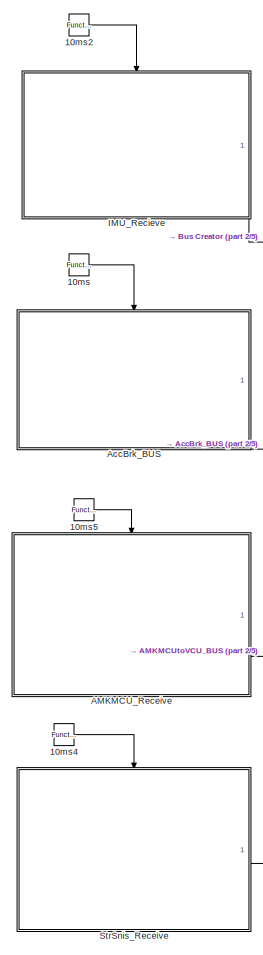
[diagram: root canvas - part 1/5, top left region]
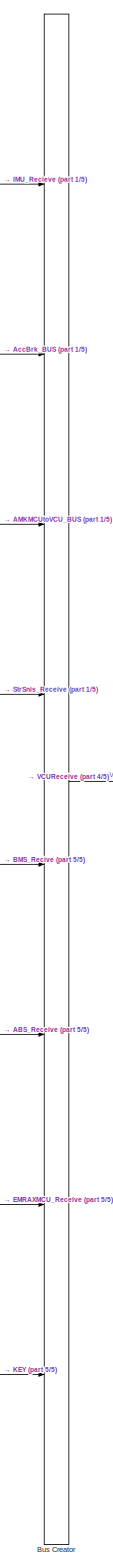
[diagram: root canvas - part 2/5, right side, full height]
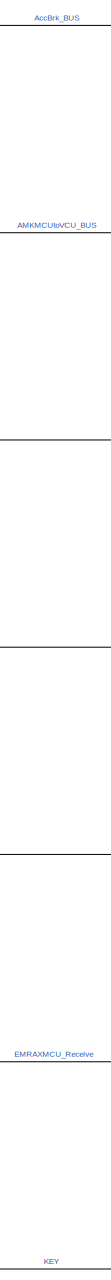
[diagram: root canvas - part 3/5, central region]
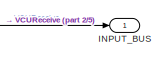
[diagram: root canvas - part 4/5, middle right region]
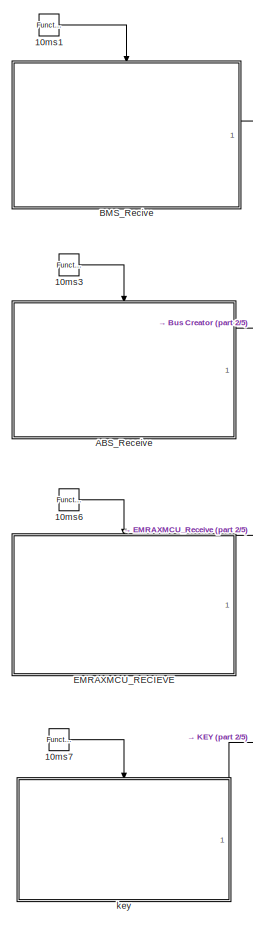
[diagram: root canvas - part 5/5, bottom left region]
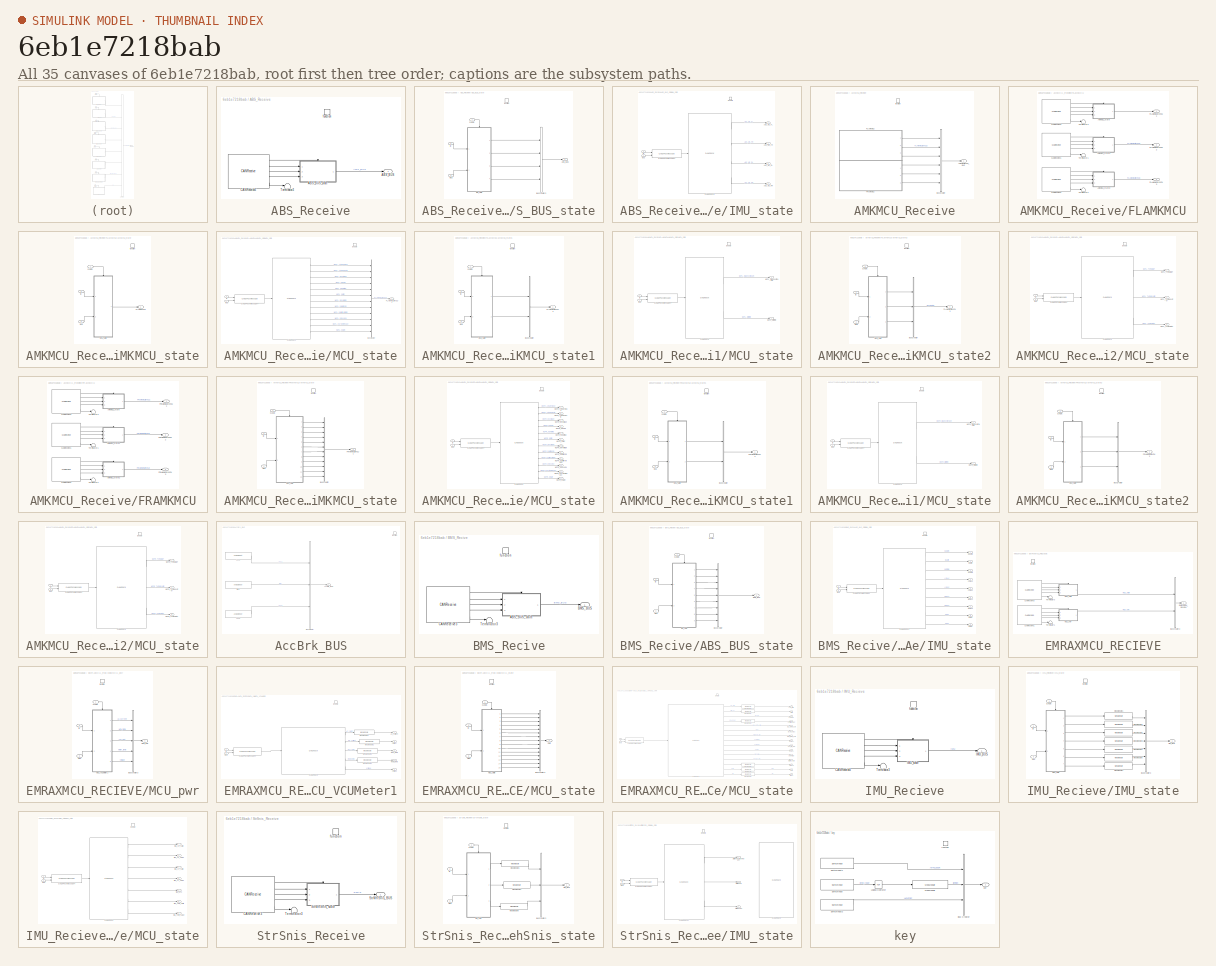
[diagram: thumbnail index - all 35 canvases of the model, root first then tree order]
MODEL slx_6eb1e7218bab
KIND model
CONFIG AbsTol = auto
CONFIG EnableMultiTasking = off
CONFIG FixedStep = auto
CONFIG MaxStep = auto
CONFIG MinStep = auto
CONFIG RelTol = 1e-3
CONFIG SampleTimeConstraint = Unconstrained
CONFIG Solver = VariableStepAuto
CONFIG SolverName = VariableStepAuto
CONFIG StartTime = 0.0
CONFIG StopTime = 10.0
BLOCK [Reference] 10ms  REF=simulink/Ports &
Subsystems/Function-Call
Generator
  Ports = [0, 1]
  SourceBlock = simulink/Ports &\nSubsystems/Function-Call\nGenerator
  SourceProductBaseCode = SL
  SourceProductName = Simulink
  SourceType = Function-Call Generator
BLOCK [Reference] 10ms1  REF=simulink/Ports &
Subsystems/Function-Call
Generator
  Ports = [0, 1]
  SourceBlock = simulink/Ports &\nSubsystems/Function-Call\nGenerator
  SourceProductBaseCode = SL
  SourceProductName = Simulink
  SourceType = Function-Call Generator
BLOCK [Reference] 10ms2  REF=simulink/Ports &
Subsystems/Function-Call
Generator
  Ports = [0, 1]
  SourceBlock = simulink/Ports &\nSubsystems/Function-Call\nGenerator
  SourceProductBaseCode = SL
  SourceProductName = Simulink
  SourceType = Function-Call Generator
BLOCK [Reference] 10ms3  REF=simulink/Ports &
Subsystems/Function-Call
Generator
  Ports = [0, 1]
  SourceBlock = simulink/Ports &\nSubsystems/Function-Call\nGenerator
  SourceProductBaseCode = SL
  SourceProductName = Simulink
  SourceType = Function-Call Generator
BLOCK [Reference] 10ms4  REF=simulink/Ports &
Subsystems/Function-Call
Generator
  Ports = [0, 1]
  SourceBlock = simulink/Ports &\nSubsystems/Function-Call\nGenerator
  SourceProductBaseCode = SL
  SourceProductName = Simulink
  SourceType = Function-Call Generator
BLOCK [Reference] 10ms5  REF=simulink/Ports &
Subsystems/Function-Call
Generator
  Ports = [0, 1]
  SourceBlock = simulink/Ports &\nSubsystems/Function-Call\nGenerator
  SourceProductBaseCode = SL
  SourceProductName = Simulink
  SourceType = Function-Call Generator
BLOCK [Reference] 10ms6  REF=simulink/Ports &
Subsystems/Function-Call
Generator
  Ports = [0, 1]
  SourceBlock = simulink/Ports &\nSubsystems/Function-Call\nGenerator
  SourceProductBaseCode = SL
  SourceProductName = Simulink
  SourceType = Function-Call Generator
BLOCK [Reference] 10ms7  REF=simulink/Ports &
Subsystems/Function-Call
Generator
  Ports = [0, 1]
  SourceBlock = simulink/Ports &\nSubsystems/Function-Call\nGenerator
  SourceProductBaseCode = SL
  SourceProductName = Simulink
  SourceType = Function-Call Generator
BLOCK [SubSystem] ABS_Receive
  Ports = [0, 1, 0, 1]
  RequestExecContextInheritance = off
  TreatAsAtomicUnit = on
BLOCK [Outport] ABS_Receive/ABS_BUS
  IconDisplay = Port number
BLOCK [SubSystem] ABS_Receive/ABS_BUS_state
  Ports = [3, 1, 0, 1]
  RequestExecContextInheritance = off
  TreatAsAtomicUnit = on
BLOCK [Outport] ABS_Receive/ABS_BUS_state/ABS_BUS
  IconDisplay = Port number
BLOCK [BusCreator] ABS_Receive/ABS_BUS_state/Bus Creator3
  DisplayOption = bar
  InheritFromInputs = on
  Inputs = 4
  Ports = [4, 1]
BLOCK [Inport] ABS_Receive/ABS_BUS_state/CANOK
  IconDisplay = Port number
BLOCK [Inport] ABS_Receive/ABS_BUS_state/ID
  IconDisplay = Port number
  Port = 2
BLOCK [SubSystem] ABS_Receive/ABS_BUS_state/IMU_state
  Ports = [2, 4, 1]
  RequestExecContextInheritance = off
  TreatAsAtomicUnit = on
BLOCK [Outport] ABS_Receive/ABS_BUS_state/IMU_state/ABS_WS_FL
  IconDisplay = Port number
  Port = 3
BLOCK [Outport] ABS_Receive/ABS_BUS_state/IMU_state/ABS_WS_FR
  IconDisplay = Port number
BLOCK [Outport] ABS_Receive/ABS_BUS_state/IMU_state/ABS_WS_RL
  IconDisplay = Port number
  Port = 2
BLOCK [Outport] ABS_Receive/ABS_BUS_state/IMU_state/ABS_WS_RR
  IconDisplay = Port number
  Port = 4
BLOCK [Reference] ABS_Receive/ABS_BUS_state/IMU_state/CAN Unpack1  REF=canmsglib/CAN Unpack
  Ports = [1, 4]
  SourceBlock = canmsglib/CAN Unpack
  SourceProductBaseCode = XP
  SourceProductName = Simulink Real-Time
  SourceType = CAN Unpack
BLOCK [Reference] ABS_Receive/ABS_BUS_state/IMU_state/CANUnPackMessage4  REF=ec5744lib/RapidECU_U3/04CANCommunication/CANUnPackMessage
  Ports = [2, 1]
  SourceBlock = ec5744lib/RapidECU_U3/04CANCommunication/CANUnPackMessage
  SourceProductName = ECUCoder for MPC5744
  SourceType = CAN Unpack Message Receive
BLOCK [EnablePort] ABS_Receive/ABS_BUS_state/IMU_state/Enable
  Ports = []
BLOCK [Inport] ABS_Receive/ABS_BUS_state/IMU_state/ID
  IconDisplay = Port number
BLOCK [Inport] ABS_Receive/ABS_BUS_state/IMU_state/Msg
  IconDisplay = Port number
  Port = 2
BLOCK [Inport] ABS_Receive/ABS_BUS_state/Msg
  IconDisplay = Port number
  Port = 3
BLOCK [TriggerPort] ABS_Receive/ABS_BUS_state/function
  Ports = []
  StatesWhenEnabling = held
  TriggerType = function-call
  VariantControl = (inherit)
BLOCK [Reference] ABS_Receive/CANReceive3  REF=ec5744lib/RapidECU_U3/04CANCommunication/CANReceive
  Ports = [0, 5]
  SourceBlock = ec5744lib/RapidECU_U3/04CANCommunication/CANReceive
  SourceProductName = ECUCoder for MPC5744
  SourceType = MPC5744 CAN Receive
BLOCK [Terminator] ABS_Receive/Terminator3
BLOCK [TriggerPort] ABS_Receive/function
  Ports = []
  StatesWhenEnabling = held
  TriggerType = function-call
  VariantControl = Variant
BLOCK [SubSystem] AMKMCU_Receive
  Ports = [0, 1, 0, 1]
  RequestExecContextInheritance = off
BLOCK [Outport] AMKMCU_Receive/AMKMCUtoVCU_BUS
  IconDisplay = Port number
BLOCK [BusCreator] AMKMCU_Receive/Bus Creator
  DisplayOption = bar
  InheritFromInputs = on
  Inputs = 6
  Ports = [6, 1]
BLOCK [SubSystem] AMKMCU_Receive/FLAMKMCU
  Ports = [0, 3]
  RequestExecContextInheritance = off
BLOCK [SubSystem] AMKMCU_Receive/FLAMKMCU/AMKMCU_state
  Ports = [3, 1, 0, 1]
  RequestExecContextInheritance = off
  TreatAsAtomicUnit = on
BLOCK [Inport] AMKMCU_Receive/FLAMKMCU/AMKMCU_state/CANOK
  IconDisplay = Port number
BLOCK [Outport] AMKMCU_Receive/FLAMKMCU/AMKMCU_state/FLAMKtoVCU1
  IconDisplay = Port number
BLOCK [Inport] AMKMCU_Receive/FLAMKMCU/AMKMCU_state/ID
  IconDisplay = Port number
  Port = 2
BLOCK [SubSystem] AMKMCU_Receive/FLAMKMCU/AMKMCU_state/MCU_state
  Ports = [2, 1, 1]
  RequestExecContextInheritance = off
  TreatAsAtomicUnit = on
BLOCK [BusCreator] AMKMCU_Receive/FLAMKMCU/AMKMCU_state/MCU_state/Bus Creator
  DisplayOption = bar
  InheritFromInputs = on
  Inputs = 12
  Ports = [12, 1]
BLOCK [Reference] AMKMCU_Receive/FLAMKMCU/AMKMCU_state/MCU_state/CAN Unpack  REF=canmsglib/CAN Unpack
  Ports = [1, 12]
  SourceBlock = canmsglib/CAN Unpack
  SourceProductBaseCode = XP
  SourceProductName = Simulink Real-Time
  SourceType = CAN Unpack
BLOCK [Reference] AMKMCU_Receive/FLAMKMCU/AMKMCU_state/MCU_state/CANUnPackMessage4  REF=ec5744lib/RapidECU_U3/04CANCommunication/CANUnPackMessage
  Ports = [2, 1]
  SourceBlock = ec5744lib/RapidECU_U3/04CANCommunication/CANUnPackMessage
  SourceProductName = ECUCoder for MPC5744
  SourceType = CAN Unpack Message Receive
BLOCK [EnablePort] AMKMCU_Receive/FLAMKMCU/AMKMCU_state/MCU_state/Enable
  Ports = []
BLOCK [Outport] AMKMCU_Receive/FLAMKMCU/AMKMCU_state/MCU_state/FLAMKMCUtoVCU1
  IconDisplay = Port number
BLOCK [Inport] AMKMCU_Receive/FLAMKMCU/AMKMCU_state/MCU_state/ID
  IconDisplay = Port number
BLOCK [Inport] AMKMCU_Receive/FLAMKMCU/AMKMCU_state/MCU_state/Msg
  IconDisplay = Port number
  Port = 2
BLOCK [Inport] AMKMCU_Receive/FLAMKMCU/AMKMCU_state/Msg
  IconDisplay = Port number
  Port = 3
BLOCK [TriggerPort] AMKMCU_Receive/FLAMKMCU/AMKMCU_state/function
  Ports = []
  StatesWhenEnabling = held
  TriggerType = function-call
  VariantControl = (inherit)
BLOCK [SubSystem] AMKMCU_Receive/FLAMKMCU/AMKMCU_state1
  Ports = [3, 1, 0, 1]
  RequestExecContextInheritance = off
  TreatAsAtomicUnit = on
BLOCK [BusCreator] AMKMCU_Receive/FLAMKMCU/AMKMCU_state1/Bus Creator
  DisplayOption = bar
  InheritFromInputs = on
  Inputs = 2
  Ports = [2, 1]
BLOCK [Inport] AMKMCU_Receive/FLAMKMCU/AMKMCU_state1/CANOK
  IconDisplay = Port number
BLOCK [Outport] AMKMCU_Receive/FLAMKMCU/AMKMCU_state1/FLAMKMCUtoVCU2
  IconDisplay = Port number
BLOCK [Inport] AMKMCU_Receive/FLAMKMCU/AMKMCU_state1/ID
  IconDisplay = Port number
  Port = 2
BLOCK [SubSystem] AMKMCU_Receive/FLAMKMCU/AMKMCU_state1/MCU_state
  Ports = [2, 2, 1]
  RequestExecContextInheritance = off
  TreatAsAtomicUnit = on
BLOCK [Reference] AMKMCU_Receive/FLAMKMCU/AMKMCU_state1/MCU_state/CAN Unpack  REF=canmsglib/CAN Unpack
  Ports = [1, 2]
  SourceBlock = canmsglib/CAN Unpack
  SourceProductBaseCode = XP
  SourceProductName = Simulink Real-Time
  SourceType = CAN Unpack
BLOCK [Reference] AMKMCU_Receive/FLAMKMCU/AMKMCU_state1/MCU_state/CANUnPackMessage4  REF=ec5744lib/RapidECU_U3/04CANCommunication/CANUnPackMessage
  Ports = [2, 1]
  SourceBlock = ec5744lib/RapidECU_U3/04CANCommunication/CANUnPackMessage
  SourceProductName = ECUCoder for MPC5744
  SourceType = CAN Unpack Message Receive
BLOCK [EnablePort] AMKMCU_Receive/FLAMKMCU/AMKMCU_state1/MCU_state/Enable
  Ports = []
BLOCK [Inport] AMKMCU_Receive/FLAMKMCU/AMKMCU_state1/MCU_state/ID
  IconDisplay = Port number
BLOCK [Outport] AMKMCU_Receive/FLAMKMCU/AMKMCU_state1/MCU_state/MCFL_DiagnosticNum
  IconDisplay = Port number
BLOCK [Outport] AMKMCU_Receive/FLAMKMCU/AMKMCU_state1/MCU_state/MCFL_ErrorInfo
  IconDisplay = Port number
  Port = 2
BLOCK [Inport] AMKMCU_Receive/FLAMKMCU/AMKMCU_state1/MCU_state/Msg
  IconDisplay = Port number
  Port = 2
BLOCK [Inport] AMKMCU_Receive/FLAMKMCU/AMKMCU_state1/Msg
  IconDisplay = Port number
  Port = 3
BLOCK [TriggerPort] AMKMCU_Receive/FLAMKMCU/AMKMCU_state1/function
  Ports = []
  StatesWhenEnabling = held
  TriggerType = function-call
  VariantControl = (inherit)
BLOCK [SubSystem] AMKMCU_Receive/FLAMKMCU/AMKMCU_state2
  Ports = [3, 1, 0, 1]
  RequestExecContextInheritance = off
  TreatAsAtomicUnit = on
BLOCK [BusCreator] AMKMCU_Receive/FLAMKMCU/AMKMCU_state2/Bus Creator
  DisplayOption = bar
  InheritFromInputs = on
  Inputs = 3
  Ports = [3, 1]
BLOCK [Inport] AMKMCU_Receive/FLAMKMCU/AMKMCU_state2/CANOK
  IconDisplay = Port number
BLOCK [Outport] AMKMCU_Receive/FLAMKMCU/AMKMCU_state2/FLAMKMCUtoVCU3
  IconDisplay = Port number
BLOCK [Inport] AMKMCU_Receive/FLAMKMCU/AMKMCU_state2/ID
  IconDisplay = Port number
  Port = 2
BLOCK [SubSystem] AMKMCU_Receive/FLAMKMCU/AMKMCU_state2/MCU_state
  Ports = [2, 3, 1]
  RequestExecContextInheritance = off
  TreatAsAtomicUnit = on
BLOCK [Reference] AMKMCU_Receive/FLAMKMCU/AMKMCU_state2/MCU_state/CAN Unpack  REF=canmsglib/CAN Unpack
  Ports = [1, 3]
  SourceBlock = canmsglib/CAN Unpack
  SourceProductBaseCode = XP
  SourceProductName = Simulink Real-Time
  SourceType = CAN Unpack
BLOCK [Reference] AMKMCU_Receive/FLAMKMCU/AMKMCU_state2/MCU_state/CANUnPackMessage4  REF=ec5744lib/RapidECU_U3/04CANCommunication/CANUnPackMessage
  Ports = [2, 1]
  SourceBlock = ec5744lib/RapidECU_U3/04CANCommunication/CANUnPackMessage
  SourceProductName = ECUCoder for MPC5744
  SourceType = CAN Unpack Message Receive
BLOCK [EnablePort] AMKMCU_Receive/FLAMKMCU/AMKMCU_state2/MCU_state/Enable
  Ports = []
BLOCK [Inport] AMKMCU_Receive/FLAMKMCU/AMKMCU_state2/MCU_state/ID
  IconDisplay = Port number
BLOCK [Outport] AMKMCU_Receive/FLAMKMCU/AMKMCU_state2/MCU_state/MCFL_TempIGBT
  IconDisplay = Port number
BLOCK [Outport] AMKMCU_Receive/FLAMKMCU/AMKMCU_state2/MCU_state/MCFL_TempInverter
  IconDisplay = Port number
  Port = 2
BLOCK [Outport] AMKMCU_Receive/FLAMKMCU/AMKMCU_state2/MCU_state/MCFL_TempMotor
  IconDisplay = Port number
  Port = 3
BLOCK [Inport] AMKMCU_Receive/FLAMKMCU/AMKMCU_state2/MCU_state/Msg
  IconDisplay = Port number
  Port = 2
BLOCK [Inport] AMKMCU_Receive/FLAMKMCU/AMKMCU_state2/Msg
  IconDisplay = Port number
  Port = 3
BLOCK [TriggerPort] AMKMCU_Receive/FLAMKMCU/AMKMCU_state2/function
  Ports = []
  StatesWhenEnabling = held
  TriggerType = function-call
  VariantControl = (inherit)
BLOCK [Reference] AMKMCU_Receive/FLAMKMCU/CANReceive1  REF=ec5744lib/RapidECU_U3/04CANCommunication/CANReceive
  Ports = [0, 5]
  SourceBlock = ec5744lib/RapidECU_U3/04CANCommunication/CANReceive
  SourceProductName = ECUCoder for MPC5744
  SourceType = MPC5744 CAN Receive
BLOCK [Reference] AMKMCU_Receive/FLAMKMCU/CANReceive2  REF=ec5744lib/RapidECU_U3/04CANCommunication/CANReceive
  Ports = [0, 5]
  SourceBlock = ec5744lib/RapidECU_U3/04CANCommunication/CANReceive
  SourceProductName = ECUCoder for MPC5744
  SourceType = MPC5744 CAN Receive
BLOCK [Reference] AMKMCU_Receive/FLAMKMCU/CANReceive3  REF=ec5744lib/RapidECU_U3/04CANCommunication/CANReceive
  Ports = [0, 5]
  SourceBlock = ec5744lib/RapidECU_U3/04CANCommunication/CANReceive
  SourceProductName = ECUCoder for MPC5744
  SourceType = MPC5744 CAN Receive
BLOCK [Outport] AMKMCU_Receive/FLAMKMCU/FLAMKMCUtoVCU1
  IconDisplay = Port number
BLOCK [Outport] AMKMCU_Receive/FLAMKMCU/FLAMKMCUtoVCU2
  IconDisplay = Port number
  Port = 2
BLOCK [Outport] AMKMCU_Receive/FLAMKMCU/FLAMKMCUtoVCU3
  IconDisplay = Port number
  Port = 3
BLOCK [Terminator] AMKMCU_Receive/FLAMKMCU/Terminator1
BLOCK [Terminator] AMKMCU_Receive/FLAMKMCU/Terminator2
BLOCK [Terminator] AMKMCU_Receive/FLAMKMCU/Terminator3
BLOCK [SubSystem] AMKMCU_Receive/FRAMKMCU
  Ports = [0, 3]
  RequestExecContextInheritance = off
BLOCK [SubSystem] AMKMCU_Receive/FRAMKMCU/AMKMCU_state
  Ports = [3, 1, 0, 1]
  RequestExecContextInheritance = off
  TreatAsAtomicUnit = on
BLOCK [BusCreator] AMKMCU_Receive/FRAMKMCU/AMKMCU_state/Bus Creator
  DisplayOption = bar
  InheritFromInputs = on
  Inputs = 12
  Ports = [12, 1]
BLOCK [Inport] AMKMCU_Receive/FRAMKMCU/AMKMCU_state/CANOK
  IconDisplay = Port number
BLOCK [Outport] AMKMCU_Receive/FRAMKMCU/AMKMCU_state/FRAMKMCUtoVCU1
  IconDisplay = Port number
BLOCK [Inport] AMKMCU_Receive/FRAMKMCU/AMKMCU_state/ID
  IconDisplay = Port number
  Port = 2
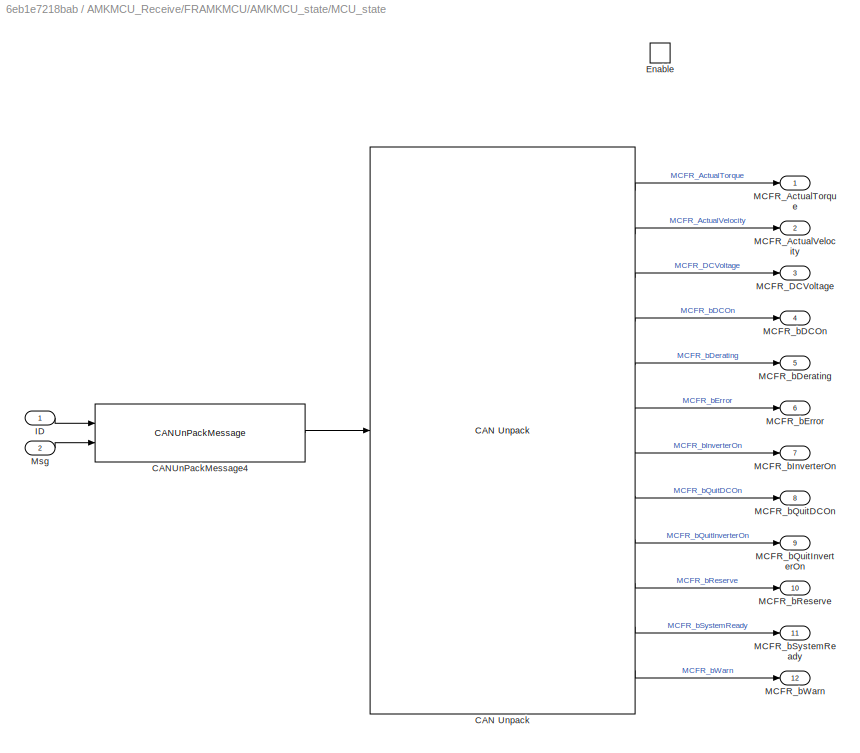
BLOCK [SubSystem] AMKMCU_Receive/FRAMKMCU/AMKMCU_state/MCU_state
  Ports = [2, 12, 1]
  RequestExecContextInheritance = off
  TreatAsAtomicUnit = on
BLOCK [Reference] AMKMCU_Receive/FRAMKMCU/AMKMCU_state/MCU_state/CAN Unpack  REF=canmsglib/CAN Unpack
  Ports = [1, 12]
  SourceBlock = canmsglib/CAN Unpack
  SourceProductBaseCode = XP
  SourceProductName = Simulink Real-Time
  SourceType = CAN Unpack
BLOCK [Reference] AMKMCU_Receive/FRAMKMCU/AMKMCU_state/MCU_state/CANUnPackMessage4  REF=ec5744lib/RapidECU_U3/04CANCommunication/CANUnPackMessage
  Ports = [2, 1]
  SourceBlock = ec5744lib/RapidECU_U3/04CANCommunication/CANUnPackMessage
  SourceProductName = ECUCoder for MPC5744
  SourceType = CAN Unpack Message Receive
BLOCK [EnablePort] AMKMCU_Receive/FRAMKMCU/AMKMCU_state/MCU_state/Enable
  Ports = []
BLOCK [Inport] AMKMCU_Receive/FRAMKMCU/AMKMCU_state/MCU_state/ID
  IconDisplay = Port number
BLOCK [Outport] AMKMCU_Receive/FRAMKMCU/AMKMCU_state/MCU_state/MCFR_ActualTorque
  IconDisplay = Port number
BLOCK [Outport] AMKMCU_Receive/FRAMKMCU/AMKMCU_state/MCU_state/MCFR_ActualVelocity
  IconDisplay = Port number
  Port = 2
BLOCK [Outport] AMKMCU_Receive/FRAMKMCU/AMKMCU_state/MCU_state/MCFR_DCVoltage
  IconDisplay = Port number
  Port = 3
BLOCK [Outport] AMKMCU_Receive/FRAMKMCU/AMKMCU_state/MCU_state/MCFR_bDCOn
  IconDisplay = Port number
  Port = 4
BLOCK [Outport] AMKMCU_Receive/FRAMKMCU/AMKMCU_state/MCU_state/MCFR_bDerating
  IconDisplay = Port number
  Port = 5
BLOCK [Outport] AMKMCU_Receive/FRAMKMCU/AMKMCU_state/MCU_state/MCFR_bError
  IconDisplay = Port number
  Port = 6
BLOCK [Outport] AMKMCU_Receive/FRAMKMCU/AMKMCU_state/MCU_state/MCFR_bInverterOn
  IconDisplay = Port number
  Port = 7
BLOCK [Outport] AMKMCU_Receive/FRAMKMCU/AMKMCU_state/MCU_state/MCFR_bQuitDCOn
  IconDisplay = Port number
  Port = 8
BLOCK [Outport] AMKMCU_Receive/FRAMKMCU/AMKMCU_state/MCU_state/MCFR_bQuitInverterOn
  IconDisplay = Port number
  Port = 9
BLOCK [Outport] AMKMCU_Receive/FRAMKMCU/AMKMCU_state/MCU_state/MCFR_bReserve
  IconDisplay = Port number
  Port = 10
BLOCK [Outport] AMKMCU_Receive/FRAMKMCU/AMKMCU_state/MCU_state/MCFR_bSystemReady
  IconDisplay = Port number
  Port = 11
BLOCK [Outport] AMKMCU_Receive/FRAMKMCU/AMKMCU_state/MCU_state/MCFR_bWarn
  IconDisplay = Port number
  Port = 12
BLOCK [Inport] AMKMCU_Receive/FRAMKMCU/AMKMCU_state/MCU_state/Msg
  IconDisplay = Port number
  Port = 2
BLOCK [Inport] AMKMCU_Receive/FRAMKMCU/AMKMCU_state/Msg
  IconDisplay = Port number
  Port = 3
BLOCK [TriggerPort] AMKMCU_Receive/FRAMKMCU/AMKMCU_state/function
  Ports = []
  StatesWhenEnabling = held
  TriggerType = function-call
  VariantControl = (inherit)
BLOCK [SubSystem] AMKMCU_Receive/FRAMKMCU/AMKMCU_state1
  Ports = [3, 1, 0, 1]
  RequestExecContextInheritance = off
  TreatAsAtomicUnit = on
BLOCK [BusCreator] AMKMCU_Receive/FRAMKMCU/AMKMCU_state1/Bus Creator
  DisplayOption = bar
  InheritFromInputs = on
  Inputs = 2
  Ports = [2, 1]
BLOCK [Inport] AMKMCU_Receive/FRAMKMCU/AMKMCU_state1/CANOK
  IconDisplay = Port number
BLOCK [Outport] AMKMCU_Receive/FRAMKMCU/AMKMCU_state1/FRAMKMCUtoVCU2
  IconDisplay = Port number
BLOCK [Inport] AMKMCU_Receive/FRAMKMCU/AMKMCU_state1/ID
  IconDisplay = Port number
  Port = 2
BLOCK [SubSystem] AMKMCU_Receive/FRAMKMCU/AMKMCU_state1/MCU_state
  Ports = [2, 2, 1]
  RequestExecContextInheritance = off
  TreatAsAtomicUnit = on
BLOCK [Reference] AMKMCU_Receive/FRAMKMCU/AMKMCU_state1/MCU_state/CAN Unpack  REF=canmsglib/CAN Unpack
  Ports = [1, 2]
  SourceBlock = canmsglib/CAN Unpack
  SourceProductBaseCode = XP
  SourceProductName = Simulink Real-Time
  SourceType = CAN Unpack
BLOCK [Reference] AMKMCU_Receive/FRAMKMCU/AMKMCU_state1/MCU_state/CANUnPackMessage4  REF=ec5744lib/RapidECU_U3/04CANCommunication/CANUnPackMessage
  Ports = [2, 1]
  SourceBlock = ec5744lib/RapidECU_U3/04CANCommunication/CANUnPackMessage
  SourceProductName = ECUCoder for MPC5744
  SourceType = CAN Unpack Message Receive
BLOCK [EnablePort] AMKMCU_Receive/FRAMKMCU/AMKMCU_state1/MCU_state/Enable
  Ports = []
BLOCK [Inport] AMKMCU_Receive/FRAMKMCU/AMKMCU_state1/MCU_state/ID
  IconDisplay = Port number
BLOCK [Outport] AMKMCU_Receive/FRAMKMCU/AMKMCU_state1/MCU_state/MCFR_DiagnosticNum
  IconDisplay = Port number
BLOCK [Outport] AMKMCU_Receive/FRAMKMCU/AMKMCU_state1/MCU_state/MCFR_ErrorInfo
  IconDisplay = Port number
  Port = 2
BLOCK [Inport] AMKMCU_Receive/FRAMKMCU/AMKMCU_state1/MCU_state/Msg
  IconDisplay = Port number
  Port = 2
BLOCK [Inport] AMKMCU_Receive/FRAMKMCU/AMKMCU_state1/Msg
  IconDisplay = Port number
  Port = 3
BLOCK [TriggerPort] AMKMCU_Receive/FRAMKMCU/AMKMCU_state1/function
  Ports = []
  StatesWhenEnabling = held
  TriggerType = function-call
  VariantControl = (inherit)
BLOCK [SubSystem] AMKMCU_Receive/FRAMKMCU/AMKMCU_state2
  Ports = [3, 1, 0, 1]
  RequestExecContextInheritance = off
  TreatAsAtomicUnit = on
BLOCK [BusCreator] AMKMCU_Receive/FRAMKMCU/AMKMCU_state2/Bus Creator
  DisplayOption = bar
  InheritFromInputs = on
  Inputs = 3
  Ports = [3, 1]
BLOCK [Inport] AMKMCU_Receive/FRAMKMCU/AMKMCU_state2/CANOK
  IconDisplay = Port number
BLOCK [Outport] AMKMCU_Receive/FRAMKMCU/AMKMCU_state2/FRAMKMCUtoVCU3
  IconDisplay = Port number
BLOCK [Inport] AMKMCU_Receive/FRAMKMCU/AMKMCU_state2/ID
  IconDisplay = Port number
  Port = 2
BLOCK [SubSystem] AMKMCU_Receive/FRAMKMCU/AMKMCU_state2/MCU_state
  Ports = [2, 3, 1]
  RequestExecContextInheritance = off
  TreatAsAtomicUnit = on
BLOCK [Reference] AMKMCU_Receive/FRAMKMCU/AMKMCU_state2/MCU_state/CAN Unpack  REF=canmsglib/CAN Unpack
  Ports = [1, 3]
  SourceBlock = canmsglib/CAN Unpack
  SourceProductBaseCode = XP
  SourceProductName = Simulink Real-Time
  SourceType = CAN Unpack
BLOCK [Reference] AMKMCU_Receive/FRAMKMCU/AMKMCU_state2/MCU_state/CANUnPackMessage4  REF=ec5744lib/RapidECU_U3/04CANCommunication/CANUnPackMessage
  Ports = [2, 1]
  SourceBlock = ec5744lib/RapidECU_U3/04CANCommunication/CANUnPackMessage
  SourceProductName = ECUCoder for MPC5744
  SourceType = CAN Unpack Message Receive
BLOCK [EnablePort] AMKMCU_Receive/FRAMKMCU/AMKMCU_state2/MCU_state/Enable
  Ports = []
BLOCK [Inport] AMKMCU_Receive/FRAMKMCU/AMKMCU_state2/MCU_state/ID
  IconDisplay = Port number
BLOCK [Outport] AMKMCU_Receive/FRAMKMCU/AMKMCU_state2/MCU_state/MCFR_TempIGBT
  IconDisplay = Port number
BLOCK [Outport] AMKMCU_Receive/FRAMKMCU/AMKMCU_state2/MCU_state/MCFR_TempInverter
  IconDisplay = Port number
  Port = 2
BLOCK [Outport] AMKMCU_Receive/FRAMKMCU/AMKMCU_state2/MCU_state/MCFR_TempMotor
  IconDisplay = Port number
  Port = 3
BLOCK [Inport] AMKMCU_Receive/FRAMKMCU/AMKMCU_state2/MCU_state/Msg
  IconDisplay = Port number
  Port = 2
BLOCK [Inport] AMKMCU_Receive/FRAMKMCU/AMKMCU_state2/Msg
  IconDisplay = Port number
  Port = 3
BLOCK [TriggerPort] AMKMCU_Receive/FRAMKMCU/AMKMCU_state2/function
  Ports = []
  StatesWhenEnabling = held
  TriggerType = function-call
  VariantControl = (inherit)
BLOCK [Reference] AMKMCU_Receive/FRAMKMCU/CANReceive1  REF=ec5744lib/RapidECU_U3/04CANCommunication/CANReceive
  Ports = [0, 5]
  SourceBlock = ec5744lib/RapidECU_U3/04CANCommunication/CANReceive
  SourceProductName = ECUCoder for MPC5744
  SourceType = MPC5744 CAN Receive
BLOCK [Reference] AMKMCU_Receive/FRAMKMCU/CANReceive2  REF=ec5744lib/RapidECU_U3/04CANCommunication/CANReceive
  Ports = [0, 5]
  SourceBlock = ec5744lib/RapidECU_U3/04CANCommunication/CANReceive
  SourceProductName = ECUCoder for MPC5744
  SourceType = MPC5744 CAN Receive
BLOCK [Reference] AMKMCU_Receive/FRAMKMCU/CANReceive3  REF=ec5744lib/RapidECU_U3/04CANCommunication/CANReceive
  Ports = [0, 5]
  SourceBlock = ec5744lib/RapidECU_U3/04CANCommunication/CANReceive
  SourceProductName = ECUCoder for MPC5744
  SourceType = MPC5744 CAN Receive
BLOCK [Outport] AMKMCU_Receive/FRAMKMCU/FRAMKMCUtoVCU1
  IconDisplay = Port number
BLOCK [Outport] AMKMCU_Receive/FRAMKMCU/FRAMKMCUtoVCU2
  IconDisplay = Port number
  Port = 2
BLOCK [Outport] AMKMCU_Receive/FRAMKMCU/FRAMKMCUtoVCU3
  IconDisplay = Port number
  Port = 3
BLOCK [Terminator] AMKMCU_Receive/FRAMKMCU/Terminator1
BLOCK [Terminator] AMKMCU_Receive/FRAMKMCU/Terminator2
BLOCK [Terminator] AMKMCU_Receive/FRAMKMCU/Terminator3
BLOCK [TriggerPort] AMKMCU_Receive/function
  Ports = []
  StatesWhenEnabling = held
  TriggerType = function-call
  VariantControl = Variant
BLOCK [SubSystem] AccBrk_BUS
  Ports = [0, 1, 0, 1]
  RequestExecContextInheritance = off
BLOCK [Reference] AccBrk_BUS/Acc1  REF=ec5744lib/RapidECU_U3/01BasicInput/AnalogInput
  Ports = [0, 1]
  SourceBlock = ec5744lib/RapidECU_U3/01BasicInput/AnalogInput
  SourceProductName = ECUCoder for MPC5744
  SourceType = RapidECU Analog Input
BLOCK [Reference] AccBrk_BUS/Acc2  REF=ec5744lib/RapidECU_U3/01BasicInput/AnalogInput
  Ports = [0, 1]
  SourceBlock = ec5744lib/RapidECU_U3/01BasicInput/AnalogInput
  SourceProductName = ECUCoder for MPC5744
  SourceType = RapidECU Analog Input
BLOCK [Outport] AccBrk_BUS/AccBrk_BUS
  IconDisplay = Port number
BLOCK [Reference] AccBrk_BUS/Brk1  REF=ec5744lib/RapidECU_U3/01BasicInput/AnalogInput
  Ports = [0, 1]
  SourceBlock = ec5744lib/RapidECU_U3/01BasicInput/AnalogInput
  SourceProductName = ECUCoder for MPC5744
  SourceType = RapidECU Analog Input
BLOCK [BusCreator] AccBrk_BUS/Bus Creator
  DisplayOption = bar
  InheritFromInputs = on
  Inputs = 3
  Ports = [3, 1]
BLOCK [TriggerPort] AccBrk_BUS/function
  Ports = []
  StatesWhenEnabling = held
  TriggerType = function-call
  VariantControl = Variant
BLOCK [SubSystem] BMS_Recive
  Ports = [0, 1, 0, 1]
  RequestExecContextInheritance = off
  TreatAsAtomicUnit = on
BLOCK [SubSystem] BMS_Recive/ABS_BUS_state
  Ports = [3, 1, 0, 1]
  RequestExecContextInheritance = off
  TreatAsAtomicUnit = on
BLOCK [Outport] BMS_Recive/ABS_BUS_state/BMS_BUS
  IconDisplay = Port number
BLOCK [BusCreator] BMS_Recive/ABS_BUS_state/Bus Creator
  DisplayOption = bar
  InheritFromInputs = on
  Inputs = 9
  Ports = [9, 1]
BLOCK [Inport] BMS_Recive/ABS_BUS_state/CANOK
  IconDisplay = Port number
BLOCK [Inport] BMS_Recive/ABS_BUS_state/ID
  IconDisplay = Port number
  Port = 2
BLOCK [SubSystem] BMS_Recive/ABS_BUS_state/IMU_state
  Ports = [2, 9, 1]
  RequestExecContextInheritance = off
  TreatAsAtomicUnit = on
BLOCK [Outport] BMS_Recive/ABS_BUS_state/IMU_state/BatAlmlv
  IconDisplay = Port number
BLOCK [Outport] BMS_Recive/ABS_BUS_state/IMU_state/BatLife
  IconDisplay = Port number
  Port = 2
BLOCK [Outport] BMS_Recive/ABS_BUS_state/IMU_state/BatState
  IconDisplay = Port number
  Port = 3
BLOCK [Reference] BMS_Recive/ABS_BUS_state/IMU_state/CAN Unpack1  REF=canmsglib/CAN Unpack
  Ports = [1, 9]
  SourceBlock = canmsglib/CAN Unpack
  SourceProductBaseCode = XP
  SourceProductName = Simulink Real-Time
  SourceType = CAN Unpack
BLOCK [Reference] BMS_Recive/ABS_BUS_state/IMU_state/CANUnPackMessage4  REF=ec5744lib/RapidECU_U3/04CANCommunication/CANUnPackMessage
  Ports = [2, 1]
  SourceBlock = ec5744lib/RapidECU_U3/04CANCommunication/CANUnPackMessage
  SourceProductName = ECUCoder for MPC5744
  SourceType = CAN Unpack Message Receive
BLOCK [EnablePort] BMS_Recive/ABS_BUS_state/IMU_state/Enable
  Ports = []
BLOCK [Inport] BMS_Recive/ABS_BUS_state/IMU_state/ID
  IconDisplay = Port number
BLOCK [Outport] BMS_Recive/ABS_BUS_state/IMU_state/LSBAz
  IconDisplay = Port number
  Port = 4
BLOCK [Outport] BMS_Recive/ABS_BUS_state/IMU_state/LSBVz
  IconDisplay = Port number
  Port = 5
BLOCK [Outport] BMS_Recive/ABS_BUS_state/IMU_state/MSBAz
  IconDisplay = Port number
  Port = 6
BLOCK [Outport] BMS_Recive/ABS_BUS_state/IMU_state/MSBVz
  IconDisplay = Port number
  Port = 7
BLOCK [Inport] BMS_Recive/ABS_BUS_state/IMU_state/Msg
  IconDisplay = Port number
  Port = 2
BLOCK [Outport] BMS_Recive/ABS_BUS_state/IMU_state/SOCz
  IconDisplay = Port number
  Port = 8
BLOCK [Outport] BMS_Recive/ABS_BUS_state/IMU_state/SOHz
  IconDisplay = Port number
  Port = 9
BLOCK [Inport] BMS_Recive/ABS_BUS_state/Msg
  IconDisplay = Port number
  Port = 3
BLOCK [TriggerPort] BMS_Recive/ABS_BUS_state/function
  Ports = []
  StatesWhenEnabling = held
  TriggerType = function-call
  VariantControl = (inherit)
BLOCK [Outport] BMS_Recive/BMS_BUS
  IconDisplay = Port number
BLOCK [Reference] BMS_Recive/CANReceive3  REF=ec5744lib/RapidECU_U3/04CANCommunication/CANReceive
  Ports = [0, 5]
  SourceBlock = ec5744lib/RapidECU_U3/04CANCommunication/CANReceive
  SourceProductName = ECUCoder for MPC5744
  SourceType = MPC5744 CAN Receive
BLOCK [Terminator] BMS_Recive/Terminator3
BLOCK [TriggerPort] BMS_Recive/function
  Ports = []
  StatesWhenEnabling = held
  TriggerType = function-call
  VariantControl = Variant
BLOCK [BusCreator] Bus Creator
  DisplayOption = bar
  InheritFromInputs = on
  Inputs = 8
  Ports = [8, 1]
BLOCK [SubSystem] EMRAXMCU_RECIEVE
  Ports = [0, 1, 0, 1]
  RequestExecContextInheritance = off
  TreatAsAtomicUnit = on
BLOCK [BusCreator] EMRAXMCU_RECIEVE/Bus Creator2
  DisplayOption = bar
  InheritFromInputs = on
  Inputs = 2
  Ports = [2, 1]
BLOCK [Reference] EMRAXMCU_RECIEVE/CANReceive1  REF=ec5744lib/RapidECU_U3/04CANCommunication/CANReceive
  Ports = [0, 5]
  SourceBlock = ec5744lib/RapidECU_U3/04CANCommunication/CANReceive
  SourceProductName = ECUCoder for MPC5744
  SourceType = MPC5744 CAN Receive
BLOCK [Reference] EMRAXMCU_RECIEVE/CANReceive3  REF=ec5744lib/RapidECU_U3/04CANCommunication/CANReceive
  Ports = [0, 5]
  SourceBlock = ec5744lib/RapidECU_U3/04CANCommunication/CANReceive
  SourceProductName = ECUCoder for MPC5744
  SourceType = MPC5744 CAN Receive
BLOCK [Outport] EMRAXMCU_RECIEVE/EMRAXMCU_Receive
  IconDisplay = Port number
  VectorParamsAs1DForOutWhenUnconnected = on
BLOCK [SubSystem] EMRAXMCU_RECIEVE/MCU_pwr
  Ports = [3, 1, 0, 1]
  RequestExecContextInheritance = off
  TreatAsAtomicUnit = on
BLOCK [BusCreator] EMRAXMCU_RECIEVE/MCU_pwr/Bus Creator3
  DisplayOption = bar
  InheritFromInputs = on
  Inputs = 5
  Ports = [5, 1]
BLOCK [Inport] EMRAXMCU_RECIEVE/MCU_pwr/CANOK
  IconDisplay = Port number
BLOCK [Inport] EMRAXMCU_RECIEVE/MCU_pwr/ID
  IconDisplay = Port number
  Port = 2
BLOCK [SubSystem] EMRAXMCU_RECIEVE/MCU_pwr/MCU_VCUMeter1
  Ports = [2, 5, 1]
  RequestExecContextInheritance = off
  TreatAsAtomicUnit = on
BLOCK [Outport] EMRAXMCU_RECIEVE/MCU_pwr/MCU_VCUMeter1/AC_current 
  IconDisplay = Port number
  VectorParamsAs1DForOutWhenUnconnected = on
BLOCK [Reference] EMRAXMCU_RECIEVE/MCU_pwr/MCU_VCUMeter1/CAN Unpack  REF=canmsglib/CAN Unpack
  Ports = [1, 5]
  SourceBlock = canmsglib/CAN Unpack
  SourceProductBaseCode = VN
  SourceProductName = Vehicle Network Toolbox
  SourceType = CAN Unpack
BLOCK [Reference] EMRAXMCU_RECIEVE/MCU_pwr/MCU_VCUMeter1/CANUnPackMessage4  REF=ec5744lib/RapidECU_U3/04CANCommunication/CANUnPackMessage
  Ports = [2, 1]
  SourceBlock = ec5744lib/RapidECU_U3/04CANCommunication/CANUnPackMessage
  SourceProductName = ECUCoder for MPC5744
  SourceType = CAN Unpack Message Receive
BLOCK [EnablePort] EMRAXMCU_RECIEVE/MCU_pwr/MCU_VCUMeter1/Enable
  Ports = []
BLOCK [Inport] EMRAXMCU_RECIEVE/MCU_pwr/MCU_VCUMeter1/ID
  IconDisplay = Port number
BLOCK [Outport] EMRAXMCU_RECIEVE/MCU_pwr/MCU_VCUMeter1/MCU_temp
  IconDisplay = Port number
  Port = 2
  VectorParamsAs1DForOutWhenUnconnected = on
BLOCK [Reference] EMRAXMCU_RECIEVE/MCU_pwr/MCU_VCUMeter1/MeaModule1  REF=ec5744lib/RapidECU_U3/07Calibration/MeaModule
  Ports = [1, 1]
  SourceBlock = ec5744lib/RapidECU_U3/07Calibration/MeaModule
  SourceProductName = ECUCoder for MPC5744
  SourceType = Measurement Module
BLOCK [Reference] EMRAXMCU_RECIEVE/MCU_pwr/MCU_VCUMeter1/MeaModule2  REF=ec5744lib/RapidECU_U3/07Calibration/MeaModule
  Ports = [1, 1]
  SourceBlock = ec5744lib/RapidECU_U3/07Calibration/MeaModule
  SourceProductName = ECUCoder for MPC5744
  SourceType = Measurement Module
BLOCK [Reference] EMRAXMCU_RECIEVE/MCU_pwr/MCU_VCUMeter1/MeaModule3  REF=ec5744lib/RapidECU_U3/07Calibration/MeaModule
  Ports = [1, 1]
  SourceBlock = ec5744lib/RapidECU_U3/07Calibration/MeaModule
  SourceProductName = ECUCoder for MPC5744
  SourceType = Measurement Module
BLOCK [Reference] EMRAXMCU_RECIEVE/MCU_pwr/MCU_VCUMeter1/MeaModule4  REF=ec5744lib/RapidECU_U3/07Calibration/MeaModule
  Ports = [1, 1]
  SourceBlock = ec5744lib/RapidECU_U3/07Calibration/MeaModule
  SourceProductName = ECUCoder for MPC5744
  SourceType = Measurement Module
BLOCK [Inport] EMRAXMCU_RECIEVE/MCU_pwr/MCU_VCUMeter1/Msg
  IconDisplay = Port number
  Port = 2
BLOCK [Outport] EMRAXMCU_RECIEVE/MCU_pwr/MCU_VCUMeter1/current
  IconDisplay = Port number
  Port = 3
  VectorParamsAs1DForOutWhenUnconnected = on
BLOCK [Outport] EMRAXMCU_RECIEVE/MCU_pwr/MCU_VCUMeter1/motor_temp
  IconDisplay = Port number
  Port = 4
  VectorParamsAs1DForOutWhenUnconnected = on
BLOCK [Outport] EMRAXMCU_RECIEVE/MCU_pwr/MCU_VCUMeter1/voltage
  IconDisplay = Port number
  Port = 5
  VectorParamsAs1DForOutWhenUnconnected = on
BLOCK [Outport] EMRAXMCU_RECIEVE/MCU_pwr/MCU_pwr
  IconDisplay = Port number
  VectorParamsAs1DForOutWhenUnconnected = on
BLOCK [Inport] EMRAXMCU_RECIEVE/MCU_pwr/Msg
  IconDisplay = Port number
  Port = 3
BLOCK [TriggerPort] EMRAXMCU_RECIEVE/MCU_pwr/function
  Ports = []
  StatesWhenEnabling = held
  TriggerType = function-call
  VariantControl = (inherit)
BLOCK [SubSystem] EMRAXMCU_RECIEVE/MCU_state
  Ports = [3, 1, 0, 1]
  RequestExecContextInheritance = off
  TreatAsAtomicUnit = on
BLOCK [BusCreator] EMRAXMCU_RECIEVE/MCU_state/Bus Creator3
  DisplayOption = bar
  InheritFromInputs = on
  Inputs = 15
  Ports = [15, 1]
BLOCK [Inport] EMRAXMCU_RECIEVE/MCU_state/CANOK
  IconDisplay = Port number
BLOCK [Inport] EMRAXMCU_RECIEVE/MCU_state/ID
  IconDisplay = Port number
  Port = 2
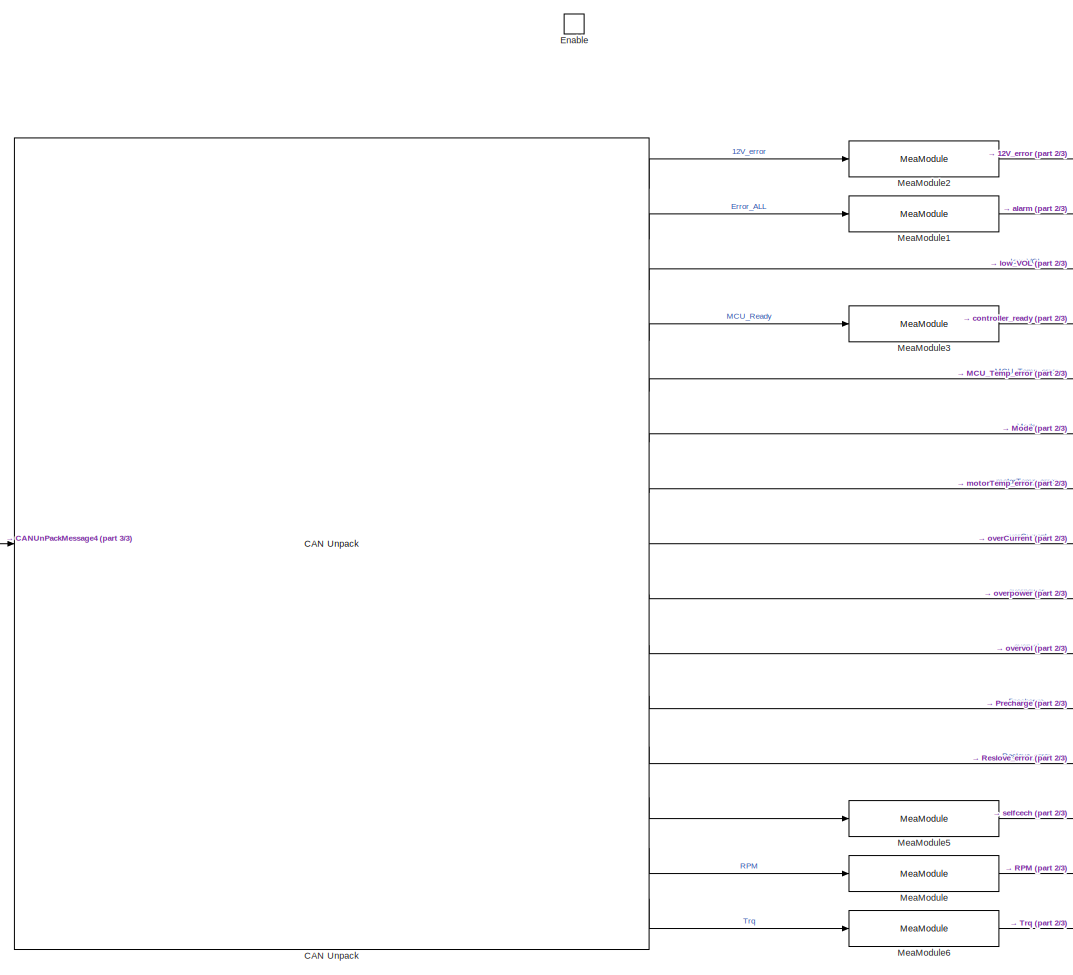
[diagram: EMRAXMCU_RECIEVE/MCU_state/MCU_state - part 1/3, center side, full height]
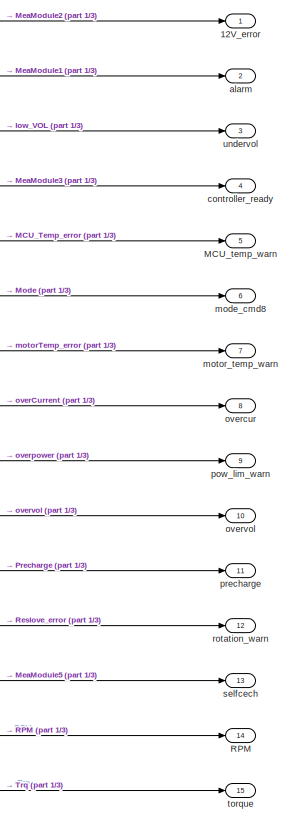
[diagram: EMRAXMCU_RECIEVE/MCU_state/MCU_state - part 2/3, right side, full height]
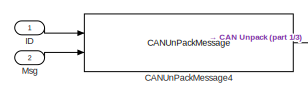
[diagram: EMRAXMCU_RECIEVE/MCU_state/MCU_state - part 3/3, middle left region]
BLOCK [SubSystem] EMRAXMCU_RECIEVE/MCU_state/MCU_state
  Ports = [2, 15, 1]
  RequestExecContextInheritance = off
  TreatAsAtomicUnit = on
BLOCK [Outport] EMRAXMCU_RECIEVE/MCU_state/MCU_state/12V_error
  IconDisplay = Port number
  VectorParamsAs1DForOutWhenUnconnected = on
BLOCK [Reference] EMRAXMCU_RECIEVE/MCU_state/MCU_state/CAN Unpack  REF=canmsglib/CAN Unpack
  Ports = [1, 15]
  SourceBlock = canmsglib/CAN Unpack
  SourceProductBaseCode = VN
  SourceProductName = Vehicle Network Toolbox
  SourceType = CAN Unpack
BLOCK [Reference] EMRAXMCU_RECIEVE/MCU_state/MCU_state/CANUnPackMessage4  REF=ec5744lib/RapidECU_U3/04CANCommunication/CANUnPackMessage
  Ports = [2, 1]
  SourceBlock = ec5744lib/RapidECU_U3/04CANCommunication/CANUnPackMessage
  SourceProductName = ECUCoder for MPC5744
  SourceType = CAN Unpack Message Receive
BLOCK [EnablePort] EMRAXMCU_RECIEVE/MCU_state/MCU_state/Enable
  Ports = []
BLOCK [Inport] EMRAXMCU_RECIEVE/MCU_state/MCU_state/ID
  IconDisplay = Port number
BLOCK [Outport] EMRAXMCU_RECIEVE/MCU_state/MCU_state/MCU_temp_warn
  IconDisplay = Port number
  Port = 5
  VectorParamsAs1DForOutWhenUnconnected = on
BLOCK [Reference] EMRAXMCU_RECIEVE/MCU_state/MCU_state/MeaModule  REF=ec5744lib/RapidECU_U3/07Calibration/MeaModule
  Ports = [1, 1]
  SourceBlock = ec5744lib/RapidECU_U3/07Calibration/MeaModule
  SourceProductName = ECUCoder for MPC5744
  SourceType = Measurement Module
BLOCK [Reference] EMRAXMCU_RECIEVE/MCU_state/MCU_state/MeaModule1  REF=ec5744lib/RapidECU_U3/07Calibration/MeaModule
  Ports = [1, 1]
  SourceBlock = ec5744lib/RapidECU_U3/07Calibration/MeaModule
  SourceProductName = ECUCoder for MPC5744
  SourceType = Measurement Module
BLOCK [Reference] EMRAXMCU_RECIEVE/MCU_state/MCU_state/MeaModule2  REF=ec5744lib/RapidECU_U3/07Calibration/MeaModule
  Ports = [1, 1]
  SourceBlock = ec5744lib/RapidECU_U3/07Calibration/MeaModule
  SourceProductName = ECUCoder for MPC5744
  SourceType = Measurement Module
BLOCK [Reference] EMRAXMCU_RECIEVE/MCU_state/MCU_state/MeaModule3  REF=ec5744lib/RapidECU_U3/07Calibration/MeaModule
  Ports = [1, 1]
  SourceBlock = ec5744lib/RapidECU_U3/07Calibration/MeaModule
  SourceProductName = ECUCoder for MPC5744
  SourceType = Measurement Module
BLOCK [Reference] EMRAXMCU_RECIEVE/MCU_state/MCU_state/MeaModule5  REF=ec5744lib/RapidECU_U3/07Calibration/MeaModule
  Ports = [1, 1]
  SourceBlock = ec5744lib/RapidECU_U3/07Calibration/MeaModule
  SourceProductName = ECUCoder for MPC5744
  SourceType = Measurement Module
BLOCK [Reference] EMRAXMCU_RECIEVE/MCU_state/MCU_state/MeaModule6  REF=ec5744lib/RapidECU_U3/07Calibration/MeaModule
  Ports = [1, 1]
  SourceBlock = ec5744lib/RapidECU_U3/07Calibration/MeaModule
  SourceProductName = ECUCoder for MPC5744
  SourceType = Measurement Module
BLOCK [Inport] EMRAXMCU_RECIEVE/MCU_state/MCU_state/Msg
  IconDisplay = Port number
  Port = 2
BLOCK [Outport] EMRAXMCU_RECIEVE/MCU_state/MCU_state/RPM
  IconDisplay = Port number
  Port = 14
  VectorParamsAs1DForOutWhenUnconnected = on
BLOCK [Outport] EMRAXMCU_RECIEVE/MCU_state/MCU_state/alarm
  IconDisplay = Port number
  Port = 2
  VectorParamsAs1DForOutWhenUnconnected = on
BLOCK [Outport] EMRAXMCU_RECIEVE/MCU_state/MCU_state/controller_ready
  IconDisplay = Port number
  Port = 4
  VectorParamsAs1DForOutWhenUnconnected = on
BLOCK [Outport] EMRAXMCU_RECIEVE/MCU_state/MCU_state/mode_cmd8
  IconDisplay = Port number
  Port = 6
  VectorParamsAs1DForOutWhenUnconnected = on
BLOCK [Outport] EMRAXMCU_RECIEVE/MCU_state/MCU_state/motor_temp_warn
  IconDisplay = Port number
  Port = 7
  VectorParamsAs1DForOutWhenUnconnected = on
BLOCK [Outport] EMRAXMCU_RECIEVE/MCU_state/MCU_state/overcur
  IconDisplay = Port number
  Port = 8
  VectorParamsAs1DForOutWhenUnconnected = on
BLOCK [Outport] EMRAXMCU_RECIEVE/MCU_state/MCU_state/overvol
  IconDisplay = Port number
  Port = 10
  VectorParamsAs1DForOutWhenUnconnected = on
BLOCK [Outport] EMRAXMCU_RECIEVE/MCU_state/MCU_state/pow_lim_warn
  IconDisplay = Port number
  Port = 9
  VectorParamsAs1DForOutWhenUnconnected = on
BLOCK [Outport] EMRAXMCU_RECIEVE/MCU_state/MCU_state/precharge
  IconDisplay = Port number
  Port = 11
  VectorParamsAs1DForOutWhenUnconnected = on
BLOCK [Outport] EMRAXMCU_RECIEVE/MCU_state/MCU_state/rotation_warn
  IconDisplay = Port number
  Port = 12
  VectorParamsAs1DForOutWhenUnconnected = on
BLOCK [Outport] EMRAXMCU_RECIEVE/MCU_state/MCU_state/selfcech
  IconDisplay = Port number
  Port = 13
  VectorParamsAs1DForOutWhenUnconnected = on
BLOCK [Outport] EMRAXMCU_RECIEVE/MCU_state/MCU_state/torque
  IconDisplay = Port number
  Port = 15
  VectorParamsAs1DForOutWhenUnconnected = on
BLOCK [Outport] EMRAXMCU_RECIEVE/MCU_state/MCU_state/undervol
  IconDisplay = Port number
  Port = 3
  VectorParamsAs1DForOutWhenUnconnected = on
BLOCK [Inport] EMRAXMCU_RECIEVE/MCU_state/Msg
  IconDisplay = Port number
  Port = 3
BLOCK [Outport] EMRAXMCU_RECIEVE/MCU_state/Out1
  IconDisplay = Port number
BLOCK [TriggerPort] EMRAXMCU_RECIEVE/MCU_state/function
  Ports = []
  StatesWhenEnabling = held
  TriggerType = function-call
  VariantControl = (inherit)
BLOCK [Terminator] EMRAXMCU_RECIEVE/Terminator1
BLOCK [Terminator] EMRAXMCU_RECIEVE/Terminator3
BLOCK [TriggerPort] EMRAXMCU_RECIEVE/function
  Ports = []
  StatesWhenEnabling = held
  TriggerType = function-call
  VariantControl = (inherit)
BLOCK [SubSystem] IMU_Recieve
  Ports = [0, 1, 0, 1]
  RequestExecContextInheritance = off
  TreatAsAtomicUnit = on
BLOCK [Reference] IMU_Recieve/CANReceive3  REF=ec5744lib/RapidECU_U3/04CANCommunication/CANReceive
  Ports = [0, 5]
  SourceBlock = ec5744lib/RapidECU_U3/04CANCommunication/CANReceive
  SourceProductName = ECUCoder for MPC5744
  SourceType = MPC5744 CAN Receive
BLOCK [Outport] IMU_Recieve/IMU_BUS
  IconDisplay = Port number
BLOCK [SubSystem] IMU_Recieve/IMU_state
  Ports = [3, 1, 0, 1]
  RequestExecContextInheritance = off
  TreatAsAtomicUnit = on
BLOCK [BusCreator] IMU_Recieve/IMU_state/Bus Creator3
  DisplayOption = bar
  InheritFromInputs = on
  Inputs = 7
  Ports = [7, 1]
BLOCK [Inport] IMU_Recieve/IMU_state/CANOK
  IconDisplay = Port number
BLOCK [Inport] IMU_Recieve/IMU_state/ID
  IconDisplay = Port number
  Port = 2
BLOCK [Outport] IMU_Recieve/IMU_state/IMU_BUS
  IconDisplay = Port number
BLOCK [SubSystem] IMU_Recieve/IMU_state/MCU_state
  Ports = [2, 7, 1]
  RequestExecContextInheritance = off
  TreatAsAtomicUnit = on
BLOCK [Reference] IMU_Recieve/IMU_state/MCU_state/CAN Unpack  REF=canmsglib/CAN Unpack
  Ports = [1, 7]
  SourceBlock = canmsglib/CAN Unpack
  SourceProductBaseCode = XP
  SourceProductName = Simulink Real-Time
  SourceType = CAN Unpack
BLOCK [Reference] IMU_Recieve/IMU_state/MCU_state/CANUnPackMessage4  REF=ec5744lib/RapidECU_U3/04CANCommunication/CANUnPackMessage
  Ports = [2, 1]
  SourceBlock = ec5744lib/RapidECU_U3/04CANCommunication/CANUnPackMessage
  SourceProductName = ECUCoder for MPC5744
  SourceType = CAN Unpack Message Receive
BLOCK [EnablePort] IMU_Recieve/IMU_state/MCU_state/Enable
  Ports = []
BLOCK [Inport] IMU_Recieve/IMU_state/MCU_state/ID
  IconDisplay = Port number
BLOCK [Outport] IMU_Recieve/IMU_state/MCU_state/IMU_Ax_Valid
  IconDisplay = Port number
  Port = 7
BLOCK [Outport] IMU_Recieve/IMU_state/MCU_state/IMU_Ax_Value
  IconDisplay = Port number
BLOCK [Outport] IMU_Recieve/IMU_state/MCU_state/IMU_Ay_Valid
  IconDisplay = Port number
  Port = 4
BLOCK [Outport] IMU_Recieve/IMU_state/MCU_state/IMU_Ay_Value
  IconDisplay = Port number
  Port = 2
BLOCK [Outport] IMU_Recieve/IMU_state/MCU_state/IMU_DTC
  IconDisplay = Port number
  Port = 5
BLOCK [Outport] IMU_Recieve/IMU_state/MCU_state/IMU_Taw_Value
  IconDisplay = Port number
  Port = 3
BLOCK [Outport] IMU_Recieve/IMU_state/MCU_state/IMU_Yaw_Valid
  IconDisplay = Port number
  Port = 6
BLOCK [Inport] IMU_Recieve/IMU_state/MCU_state/Msg
  IconDisplay = Port number
  Port = 2
BLOCK [Reference] IMU_Recieve/IMU_state/MeaModule1  REF=ec5744lib/RapidECU_U3/07Calibration/MeaModule
  Ports = [1, 1]
  SourceBlock = ec5744lib/RapidECU_U3/07Calibration/MeaModule
  SourceProductName = ECUCoder for MPC5744
  SourceType = Measurement Module
BLOCK [Reference] IMU_Recieve/IMU_state/MeaModule2  REF=ec5744lib/RapidECU_U3/07Calibration/MeaModule
  Ports = [1, 1]
  SourceBlock = ec5744lib/RapidECU_U3/07Calibration/MeaModule
  SourceProductName = ECUCoder for MPC5744
  SourceType = Measurement Module
BLOCK [Reference] IMU_Recieve/IMU_state/MeaModule3  REF=ec5744lib/RapidECU_U3/07Calibration/MeaModule
  Ports = [1, 1]
  SourceBlock = ec5744lib/RapidECU_U3/07Calibration/MeaModule
  SourceProductName = ECUCoder for MPC5744
  SourceType = Measurement Module
BLOCK [Reference] IMU_Recieve/IMU_state/MeaModule4  REF=ec5744lib/RapidECU_U3/07Calibration/MeaModule
  Ports = [1, 1]
  SourceBlock = ec5744lib/RapidECU_U3/07Calibration/MeaModule
  SourceProductName = ECUCoder for MPC5744
  SourceType = Measurement Module
BLOCK [Reference] IMU_Recieve/IMU_state/MeaModule5  REF=ec5744lib/RapidECU_U3/07Calibration/MeaModule
  Ports = [1, 1]
  SourceBlock = ec5744lib/RapidECU_U3/07Calibration/MeaModule
  SourceProductName = ECUCoder for MPC5744
  SourceType = Measurement Module
BLOCK [Reference] IMU_Recieve/IMU_state/MeaModule6  REF=ec5744lib/RapidECU_U3/07Calibration/MeaModule
  Ports = [1, 1]
  SourceBlock = ec5744lib/RapidECU_U3/07Calibration/MeaModule
  SourceProductName = ECUCoder for MPC5744
  SourceType = Measurement Module
BLOCK [Reference] IMU_Recieve/IMU_state/MeaModule7  REF=ec5744lib/RapidECU_U3/07Calibration/MeaModule
  Ports = [1, 1]
  SourceBlock = ec5744lib/RapidECU_U3/07Calibration/MeaModule
  SourceProductName = ECUCoder for MPC5744
  SourceType = Measurement Module
BLOCK [Inport] IMU_Recieve/IMU_state/Msg
  IconDisplay = Port number
  Port = 3
BLOCK [TriggerPort] IMU_Recieve/IMU_state/function
  Ports = []
  StatesWhenEnabling = held
  TriggerType = function-call
  VariantControl = (inherit)
BLOCK [Terminator] IMU_Recieve/Terminator3
BLOCK [TriggerPort] IMU_Recieve/function
  Ports = []
  StatesWhenEnabling = held
  TriggerType = function-call
  VariantControl = Variant
BLOCK [Outport] INPUT_BUS
  IconDisplay = Port number
BLOCK [SubSystem] StrSnis_Receive
  Ports = [0, 1, 0, 1]
  RequestExecContextInheritance = off
  TreatAsAtomicUnit = on
BLOCK [Reference] StrSnis_Receive/CANReceive3  REF=ec5744lib/RapidECU_U3/04CANCommunication/CANReceive
  Ports = [0, 5]
  SourceBlock = ec5744lib/RapidECU_U3/04CANCommunication/CANReceive
  SourceProductName = ECUCoder for MPC5744
  SourceType = MPC5744 CAN Receive
BLOCK [Outport] StrSnis_Receive/StrWhSnis_BUS
  IconDisplay = Port number
BLOCK [SubSystem] StrSnis_Receive/StrWhSnis_state
  Ports = [3, 1, 0, 1]
  RequestExecContextInheritance = off
  TreatAsAtomicUnit = on
BLOCK [BusCreator] StrSnis_Receive/StrWhSnis_state/Bus Creator3
  DisplayOption = bar
  InheritFromInputs = on
  Inputs = 3
  Ports = [3, 1]
BLOCK [Inport] StrSnis_Receive/StrWhSnis_state/CANOK
  IconDisplay = Port number
BLOCK [Inport] StrSnis_Receive/StrWhSnis_state/ID
  IconDisplay = Port number
  Port = 2
BLOCK [Outport] StrSnis_Receive/StrWhSnis_state/IMU_BUS
  IconDisplay = Port number
BLOCK [SubSystem] StrSnis_Receive/StrWhSnis_state/IMU_state
  Ports = [2, 3, 1]
  RequestExecContextInheritance = off
  TreatAsAtomicUnit = on
BLOCK [Reference] StrSnis_Receive/StrWhSnis_state/IMU_state/CAN Unpack  REF=canmsglib/CAN Unpack
  Commented = on
  Ports = [1, 7]
  SourceBlock = canmsglib/CAN Unpack
  SourceProductBaseCode = XP
  SourceProductName = Simulink Real-Time
  SourceType = CAN Unpack
BLOCK [Reference] StrSnis_Receive/StrWhSnis_state/IMU_state/CAN Unpack1  REF=canmsglib/CAN Unpack
  Ports = [1, 3]
  SourceBlock = canmsglib/CAN Unpack
  SourceProductBaseCode = XP
  SourceProductName = Simulink Real-Time
  SourceType = CAN Unpack
BLOCK [Reference] StrSnis_Receive/StrWhSnis_state/IMU_state/CANUnPackMessage4  REF=ec5744lib/RapidECU_U3/04CANCommunication/CANUnPackMessage
  Ports = [2, 1]
  SourceBlock = ec5744lib/RapidECU_U3/04CANCommunication/CANUnPackMessage
  SourceProductName = ECUCoder for MPC5744
  SourceType = CAN Unpack Message Receive
BLOCK [EnablePort] StrSnis_Receive/StrWhSnis_state/IMU_state/Enable
  Ports = []
BLOCK [Inport] StrSnis_Receive/StrWhSnis_state/IMU_state/ID
  IconDisplay = Port number
BLOCK [Inport] StrSnis_Receive/StrWhSnis_state/IMU_state/Msg
  IconDisplay = Port number
  Port = 2
BLOCK [Outport] StrSnis_Receive/StrWhSnis_state/IMU_state/StrWhlAng
  IconDisplay = Port number
BLOCK [Outport] StrSnis_Receive/StrWhSnis_state/IMU_state/StrWhlAngAliveRollCnt
  IconDisplay = Port number
  Port = 3
BLOCK [Outport] StrSnis_Receive/StrWhSnis_state/IMU_state/StrWhlAngV
  IconDisplay = Port number
  Port = 2
BLOCK [Reference] StrSnis_Receive/StrWhSnis_state/MeaModule1  REF=ec5744lib/RapidECU_U3/07Calibration/MeaModule
  Ports = [1, 1]
  SourceBlock = ec5744lib/RapidECU_U3/07Calibration/MeaModule
  SourceProductName = ECUCoder for MPC5744
  SourceType = Measurement Module
BLOCK [Reference] StrSnis_Receive/StrWhSnis_state/MeaModule2  REF=ec5744lib/RapidECU_U3/07Calibration/MeaModule
  Ports = [1, 1]
  SourceBlock = ec5744lib/RapidECU_U3/07Calibration/MeaModule
  SourceProductName = ECUCoder for MPC5744
  SourceType = Measurement Module
BLOCK [Reference] StrSnis_Receive/StrWhSnis_state/MeaModule6  REF=ec5744lib/RapidECU_U3/07Calibration/MeaModule
  Ports = [1, 1]
  SourceBlock = ec5744lib/RapidECU_U3/07Calibration/MeaModule
  SourceProductName = ECUCoder for MPC5744
  SourceType = Measurement Module
BLOCK [Inport] StrSnis_Receive/StrWhSnis_state/Msg
  IconDisplay = Port number
  Port = 3
BLOCK [TriggerPort] StrSnis_Receive/StrWhSnis_state/function
  Ports = []
  StatesWhenEnabling = held
  TriggerType = function-call
  VariantControl = (inherit)
BLOCK [Terminator] StrSnis_Receive/Terminator3
BLOCK [TriggerPort] StrSnis_Receive/function
  Ports = []
  StatesWhenEnabling = held
  TriggerType = function-call
  VariantControl = Variant
BLOCK [SubSystem] key
  Ports = [0, 1, 0, 1]
  RequestExecContextInheritance = off
  TreatAsAtomicUnit = on
BLOCK [BusCreator] key/Bus Creator
  DisplayOption = bar
  InheritFromInputs = on
  Inputs = 3
  Ports = [3, 1]
BLOCK [Logic] key/Logical Operator
  AllPortsSameDT = off
  Operator = NOT
  OutDataTypeStr = boolean
  Ports = [1, 1]
BLOCK [Reference] key/MeaModule  REF=ec5744lib/RapidECU_U3/07Calibration/MeaModule
  Ports = [1, 1]
  SourceBlock = ec5744lib/RapidECU_U3/07Calibration/MeaModule
  SourceProductName = ECUCoder for MPC5744
  SourceType = Measurement Module
BLOCK [Reference] key/SwitchInput  REF=ec5744lib/RapidECU_U3/01BasicInput/SwitchInput
  Ports = [0, 1]
  SourceBlock = ec5744lib/RapidECU_U3/01BasicInput/SwitchInput
  SourceProductName = ECUCoder for MPC5744
  SourceType = RapidECU Switch Input
BLOCK [Reference] key/SwitchInput1  REF=ec5744lib/RapidECU_U3/01BasicInput/SwitchInput
  Ports = [0, 1]
  SourceBlock = ec5744lib/RapidECU_U3/01BasicInput/SwitchInput
  SourceProductName = ECUCoder for MPC5744
  SourceType = RapidECU Switch Input
BLOCK [Reference] key/SwitchInput2  REF=ec5744lib/RapidECU_U3/01BasicInput/SwitchInput
  Ports = [0, 1]
  SourceBlock = ec5744lib/RapidECU_U3/01BasicInput/SwitchInput
  SourceProductName = ECUCoder for MPC5744
  SourceType = RapidECU Switch Input
BLOCK [TriggerPort] key/function
  Ports = []
  StatesWhenEnabling = held
  TriggerType = function-call
  VariantControl = (inherit)
BLOCK [Outport] key/key
  IconDisplay = Port number
LINE 10ms1:1 -> BMS_Recive:trigger
LINE 10ms2:1 -> IMU_Recieve:trigger
LINE 10ms3:1 -> ABS_Receive:trigger
LINE 10ms4:1 -> StrSnis_Receive:trigger
LINE 10ms5:1 -> AMKMCU_Receive:trigger
LINE 10ms6:1 -> EMRAXMCU_RECIEVE:trigger
LINE 10ms7:1 -> key:trigger
LINE 10ms:1 -> AccBrk_BUS:trigger
LINE ABS_Receive/ABS_BUS_state/Bus Creator3:1 -> ABS_Receive/ABS_BUS_state/ABS_BUS:1
LINE ABS_Receive/ABS_BUS_state/CANOK:1 -> ABS_Receive/ABS_BUS_state/IMU_state:enable
LINE ABS_Receive/ABS_BUS_state/ID:1 -> ABS_Receive/ABS_BUS_state/IMU_state:1
LINE ABS_Receive/ABS_BUS_state/IMU_state/CAN Unpack1:1 -> ABS_Receive/ABS_BUS_state/IMU_state/ABS_WS_FL:1
LINE ABS_Receive/ABS_BUS_state/IMU_state/CAN Unpack1:2 -> ABS_Receive/ABS_BUS_state/IMU_state/ABS_WS_FR:1
LINE ABS_Receive/ABS_BUS_state/IMU_state/CAN Unpack1:3 -> ABS_Receive/ABS_BUS_state/IMU_state/ABS_WS_RL:1
LINE ABS_Receive/ABS_BUS_state/IMU_state/CAN Unpack1:4 -> ABS_Receive/ABS_BUS_state/IMU_state/ABS_WS_RR:1
LINE ABS_Receive/ABS_BUS_state/IMU_state/CANUnPackMessage4:1 -> ABS_Receive/ABS_BUS_state/IMU_state/CAN Unpack1:1
LINE ABS_Receive/ABS_BUS_state/IMU_state/ID:1 -> ABS_Receive/ABS_BUS_state/IMU_state/CANUnPackMessage4:1
LINE ABS_Receive/ABS_BUS_state/IMU_state/Msg:1 -> ABS_Receive/ABS_BUS_state/IMU_state/CANUnPackMessage4:2
LINE ABS_Receive/ABS_BUS_state/IMU_state:1 -> ABS_Receive/ABS_BUS_state/Bus Creator3:1
LINE ABS_Receive/ABS_BUS_state/IMU_state:2 -> ABS_Receive/ABS_BUS_state/Bus Creator3:2
LINE ABS_Receive/ABS_BUS_state/IMU_state:3 -> ABS_Receive/ABS_BUS_state/Bus Creator3:3
LINE ABS_Receive/ABS_BUS_state/IMU_state:4 -> ABS_Receive/ABS_BUS_state/Bus Creator3:4
LINE ABS_Receive/ABS_BUS_state/Msg:1 -> ABS_Receive/ABS_BUS_state/IMU_state:2
LINE ABS_Receive/ABS_BUS_state:1 -> ABS_Receive/ABS_BUS:1
LINE ABS_Receive/CANReceive3:1 -> ABS_Receive/ABS_BUS_state:trigger
LINE ABS_Receive/CANReceive3:2 -> ABS_Receive/ABS_BUS_state:1
LINE ABS_Receive/CANReceive3:3 -> ABS_Receive/ABS_BUS_state:2
LINE ABS_Receive/CANReceive3:4 -> ABS_Receive/ABS_BUS_state:3
LINE ABS_Receive/CANReceive3:5 -> ABS_Receive/Terminator3:1
LINE ABS_Receive:1 -> Bus Creator:6
LINE AMKMCU_Receive/Bus Creator:1 -> AMKMCU_Receive/AMKMCUtoVCU_BUS:1
LINE AMKMCU_Receive/FLAMKMCU/AMKMCU_state/CANOK:1 -> AMKMCU_Receive/FLAMKMCU/AMKMCU_state/MCU_state:enable
LINE AMKMCU_Receive/FLAMKMCU/AMKMCU_state/ID:1 -> AMKMCU_Receive/FLAMKMCU/AMKMCU_state/MCU_state:1
LINE AMKMCU_Receive/FLAMKMCU/AMKMCU_state/MCU_state/Bus Creator:1 -> AMKMCU_Receive/FLAMKMCU/AMKMCU_state/MCU_state/FLAMKMCUtoVCU1:1
LINE AMKMCU_Receive/FLAMKMCU/AMKMCU_state/MCU_state/CAN Unpack:1 -> AMKMCU_Receive/FLAMKMCU/AMKMCU_state/MCU_state/Bus Creator:1
LINE AMKMCU_Receive/FLAMKMCU/AMKMCU_state/MCU_state/CAN Unpack:10 -> AMKMCU_Receive/FLAMKMCU/AMKMCU_state/MCU_state/Bus Creator:10
LINE AMKMCU_Receive/FLAMKMCU/AMKMCU_state/MCU_state/CAN Unpack:11 -> AMKMCU_Receive/FLAMKMCU/AMKMCU_state/MCU_state/Bus Creator:11
LINE AMKMCU_Receive/FLAMKMCU/AMKMCU_state/MCU_state/CAN Unpack:12 -> AMKMCU_Receive/FLAMKMCU/AMKMCU_state/MCU_state/Bus Creator:12
LINE AMKMCU_Receive/FLAMKMCU/AMKMCU_state/MCU_state/CAN Unpack:2 -> AMKMCU_Receive/FLAMKMCU/AMKMCU_state/MCU_state/Bus Creator:2
LINE AMKMCU_Receive/FLAMKMCU/AMKMCU_state/MCU_state/CAN Unpack:3 -> AMKMCU_Receive/FLAMKMCU/AMKMCU_state/MCU_state/Bus Creator:3
LINE AMKMCU_Receive/FLAMKMCU/AMKMCU_state/MCU_state/CAN Unpack:4 -> AMKMCU_Receive/FLAMKMCU/AMKMCU_state/MCU_state/Bus Creator:4
LINE AMKMCU_Receive/FLAMKMCU/AMKMCU_state/MCU_state/CAN Unpack:5 -> AMKMCU_Receive/FLAMKMCU/AMKMCU_state/MCU_state/Bus Creator:5
LINE AMKMCU_Receive/FLAMKMCU/AMKMCU_state/MCU_state/CAN Unpack:6 -> AMKMCU_Receive/FLAMKMCU/AMKMCU_state/MCU_state/Bus Creator:6
LINE AMKMCU_Receive/FLAMKMCU/AMKMCU_state/MCU_state/CAN Unpack:7 -> AMKMCU_Receive/FLAMKMCU/AMKMCU_state/MCU_state/Bus Creator:7
LINE AMKMCU_Receive/FLAMKMCU/AMKMCU_state/MCU_state/CAN Unpack:8 -> AMKMCU_Receive/FLAMKMCU/AMKMCU_state/MCU_state/Bus Creator:8
LINE AMKMCU_Receive/FLAMKMCU/AMKMCU_state/MCU_state/CAN Unpack:9 -> AMKMCU_Receive/FLAMKMCU/AMKMCU_state/MCU_state/Bus Creator:9
LINE AMKMCU_Receive/FLAMKMCU/AMKMCU_state/MCU_state/CANUnPackMessage4:1 -> AMKMCU_Receive/FLAMKMCU/AMKMCU_state/MCU_state/CAN Unpack:1
LINE AMKMCU_Receive/FLAMKMCU/AMKMCU_state/MCU_state/ID:1 -> AMKMCU_Receive/FLAMKMCU/AMKMCU_state/MCU_state/CANUnPackMessage4:1
LINE AMKMCU_Receive/FLAMKMCU/AMKMCU_state/MCU_state/Msg:1 -> AMKMCU_Receive/FLAMKMCU/AMKMCU_state/MCU_state/CANUnPackMessage4:2
LINE AMKMCU_Receive/FLAMKMCU/AMKMCU_state/MCU_state:1 -> AMKMCU_Receive/FLAMKMCU/AMKMCU_state/FLAMKtoVCU1:1
LINE AMKMCU_Receive/FLAMKMCU/AMKMCU_state/Msg:1 -> AMKMCU_Receive/FLAMKMCU/AMKMCU_state/MCU_state:2
LINE AMKMCU_Receive/FLAMKMCU/AMKMCU_state1/Bus Creator:1 -> AMKMCU_Receive/FLAMKMCU/AMKMCU_state1/FLAMKMCUtoVCU2:1
LINE AMKMCU_Receive/FLAMKMCU/AMKMCU_state1/CANOK:1 -> AMKMCU_Receive/FLAMKMCU/AMKMCU_state1/MCU_state:enable
LINE AMKMCU_Receive/FLAMKMCU/AMKMCU_state1/ID:1 -> AMKMCU_Receive/FLAMKMCU/AMKMCU_state1/MCU_state:1
LINE AMKMCU_Receive/FLAMKMCU/AMKMCU_state1/MCU_state/CAN Unpack:1 -> AMKMCU_Receive/FLAMKMCU/AMKMCU_state1/MCU_state/MCFL_DiagnosticNum:1
LINE AMKMCU_Receive/FLAMKMCU/AMKMCU_state1/MCU_state/CAN Unpack:2 -> AMKMCU_Receive/FLAMKMCU/AMKMCU_state1/MCU_state/MCFL_ErrorInfo:1
LINE AMKMCU_Receive/FLAMKMCU/AMKMCU_state1/MCU_state/CANUnPackMessage4:1 -> AMKMCU_Receive/FLAMKMCU/AMKMCU_state1/MCU_state/CAN Unpack:1
LINE AMKMCU_Receive/FLAMKMCU/AMKMCU_state1/MCU_state/ID:1 -> AMKMCU_Receive/FLAMKMCU/AMKMCU_state1/MCU_state/CANUnPackMessage4:1
LINE AMKMCU_Receive/FLAMKMCU/AMKMCU_state1/MCU_state/Msg:1 -> AMKMCU_Receive/FLAMKMCU/AMKMCU_state1/MCU_state/CANUnPackMessage4:2
LINE AMKMCU_Receive/FLAMKMCU/AMKMCU_state1/MCU_state:1 -> AMKMCU_Receive/FLAMKMCU/AMKMCU_state1/Bus Creator:1
LINE AMKMCU_Receive/FLAMKMCU/AMKMCU_state1/MCU_state:2 -> AMKMCU_Receive/FLAMKMCU/AMKMCU_state1/Bus Creator:2
LINE AMKMCU_Receive/FLAMKMCU/AMKMCU_state1/Msg:1 -> AMKMCU_Receive/FLAMKMCU/AMKMCU_state1/MCU_state:2
LINE AMKMCU_Receive/FLAMKMCU/AMKMCU_state1:1 -> AMKMCU_Receive/FLAMKMCU/FLAMKMCUtoVCU2:1
LINE AMKMCU_Receive/FLAMKMCU/AMKMCU_state2/Bus Creator:1 -> AMKMCU_Receive/FLAMKMCU/AMKMCU_state2/FLAMKMCUtoVCU3:1
LINE AMKMCU_Receive/FLAMKMCU/AMKMCU_state2/CANOK:1 -> AMKMCU_Receive/FLAMKMCU/AMKMCU_state2/MCU_state:enable
LINE AMKMCU_Receive/FLAMKMCU/AMKMCU_state2/ID:1 -> AMKMCU_Receive/FLAMKMCU/AMKMCU_state2/MCU_state:1
LINE AMKMCU_Receive/FLAMKMCU/AMKMCU_state2/MCU_state/CAN Unpack:1 -> AMKMCU_Receive/FLAMKMCU/AMKMCU_state2/MCU_state/MCFL_TempIGBT:1
LINE AMKMCU_Receive/FLAMKMCU/AMKMCU_state2/MCU_state/CAN Unpack:2 -> AMKMCU_Receive/FLAMKMCU/AMKMCU_state2/MCU_state/MCFL_TempInverter:1
LINE AMKMCU_Receive/FLAMKMCU/AMKMCU_state2/MCU_state/CAN Unpack:3 -> AMKMCU_Receive/FLAMKMCU/AMKMCU_state2/MCU_state/MCFL_TempMotor:1
LINE AMKMCU_Receive/FLAMKMCU/AMKMCU_state2/MCU_state/CANUnPackMessage4:1 -> AMKMCU_Receive/FLAMKMCU/AMKMCU_state2/MCU_state/CAN Unpack:1
LINE AMKMCU_Receive/FLAMKMCU/AMKMCU_state2/MCU_state/ID:1 -> AMKMCU_Receive/FLAMKMCU/AMKMCU_state2/MCU_state/CANUnPackMessage4:1
LINE AMKMCU_Receive/FLAMKMCU/AMKMCU_state2/MCU_state/Msg:1 -> AMKMCU_Receive/FLAMKMCU/AMKMCU_state2/MCU_state/CANUnPackMessage4:2
LINE AMKMCU_Receive/FLAMKMCU/AMKMCU_state2/MCU_state:1 -> AMKMCU_Receive/FLAMKMCU/AMKMCU_state2/Bus Creator:1
LINE AMKMCU_Receive/FLAMKMCU/AMKMCU_state2/MCU_state:2 -> AMKMCU_Receive/FLAMKMCU/AMKMCU_state2/Bus Creator:2
LINE AMKMCU_Receive/FLAMKMCU/AMKMCU_state2/MCU_state:3 -> AMKMCU_Receive/FLAMKMCU/AMKMCU_state2/Bus Creator:3
LINE AMKMCU_Receive/FLAMKMCU/AMKMCU_state2/Msg:1 -> AMKMCU_Receive/FLAMKMCU/AMKMCU_state2/MCU_state:2
LINE AMKMCU_Receive/FLAMKMCU/AMKMCU_state2:1 -> AMKMCU_Receive/FLAMKMCU/FLAMKMCUtoVCU3:1
LINE AMKMCU_Receive/FLAMKMCU/AMKMCU_state:1 -> AMKMCU_Receive/FLAMKMCU/FLAMKMCUtoVCU1:1
LINE AMKMCU_Receive/FLAMKMCU/CANReceive1:1 -> AMKMCU_Receive/FLAMKMCU/AMKMCU_state1:trigger
LINE AMKMCU_Receive/FLAMKMCU/CANReceive1:2 -> AMKMCU_Receive/FLAMKMCU/AMKMCU_state1:1
LINE AMKMCU_Receive/FLAMKMCU/CANReceive1:3 -> AMKMCU_Receive/FLAMKMCU/AMKMCU_state1:2
LINE AMKMCU_Receive/FLAMKMCU/CANReceive1:4 -> AMKMCU_Receive/FLAMKMCU/AMKMCU_state1:3
LINE AMKMCU_Receive/FLAMKMCU/CANReceive1:5 -> AMKMCU_Receive/FLAMKMCU/Terminator1:1
LINE AMKMCU_Receive/FLAMKMCU/CANReceive2:1 -> AMKMCU_Receive/FLAMKMCU/AMKMCU_state2:trigger
LINE AMKMCU_Receive/FLAMKMCU/CANReceive2:2 -> AMKMCU_Receive/FLAMKMCU/AMKMCU_state2:1
LINE AMKMCU_Receive/FLAMKMCU/CANReceive2:3 -> AMKMCU_Receive/FLAMKMCU/AMKMCU_state2:2
LINE AMKMCU_Receive/FLAMKMCU/CANReceive2:4 -> AMKMCU_Receive/FLAMKMCU/AMKMCU_state2:3
LINE AMKMCU_Receive/FLAMKMCU/CANReceive2:5 -> AMKMCU_Receive/FLAMKMCU/Terminator2:1
LINE AMKMCU_Receive/FLAMKMCU/CANReceive3:1 -> AMKMCU_Receive/FLAMKMCU/AMKMCU_state:trigger
LINE AMKMCU_Receive/FLAMKMCU/CANReceive3:2 -> AMKMCU_Receive/FLAMKMCU/AMKMCU_state:1
LINE AMKMCU_Receive/FLAMKMCU/CANReceive3:3 -> AMKMCU_Receive/FLAMKMCU/AMKMCU_state:2
LINE AMKMCU_Receive/FLAMKMCU/CANReceive3:4 -> AMKMCU_Receive/FLAMKMCU/AMKMCU_state:3
LINE AMKMCU_Receive/FLAMKMCU/CANReceive3:5 -> AMKMCU_Receive/FLAMKMCU/Terminator3:1
LINE AMKMCU_Receive/FLAMKMCU:1 -> AMKMCU_Receive/Bus Creator:1
LINE AMKMCU_Receive/FLAMKMCU:2 -> AMKMCU_Receive/Bus Creator:2
LINE AMKMCU_Receive/FLAMKMCU:3 -> AMKMCU_Receive/Bus Creator:3
LINE AMKMCU_Receive/FRAMKMCU/AMKMCU_state/Bus Creator:1 -> AMKMCU_Receive/FRAMKMCU/AMKMCU_state/FRAMKMCUtoVCU1:1
LINE AMKMCU_Receive/FRAMKMCU/AMKMCU_state/CANOK:1 -> AMKMCU_Receive/FRAMKMCU/AMKMCU_state/MCU_state:enable
LINE AMKMCU_Receive/FRAMKMCU/AMKMCU_state/ID:1 -> AMKMCU_Receive/FRAMKMCU/AMKMCU_state/MCU_state:1
LINE AMKMCU_Receive/FRAMKMCU/AMKMCU_state/MCU_state/CAN Unpack:1 -> AMKMCU_Receive/FRAMKMCU/AMKMCU_state/MCU_state/MCFR_ActualTorque:1
LINE AMKMCU_Receive/FRAMKMCU/AMKMCU_state/MCU_state/CAN Unpack:10 -> AMKMCU_Receive/FRAMKMCU/AMKMCU_state/MCU_state/MCFR_bReserve:1
LINE AMKMCU_Receive/FRAMKMCU/AMKMCU_state/MCU_state/CAN Unpack:11 -> AMKMCU_Receive/FRAMKMCU/AMKMCU_state/MCU_state/MCFR_bSystemReady:1
LINE AMKMCU_Receive/FRAMKMCU/AMKMCU_state/MCU_state/CAN Unpack:12 -> AMKMCU_Receive/FRAMKMCU/AMKMCU_state/MCU_state/MCFR_bWarn:1
LINE AMKMCU_Receive/FRAMKMCU/AMKMCU_state/MCU_state/CAN Unpack:2 -> AMKMCU_Receive/FRAMKMCU/AMKMCU_state/MCU_state/MCFR_ActualVelocity:1
LINE AMKMCU_Receive/FRAMKMCU/AMKMCU_state/MCU_state/CAN Unpack:3 -> AMKMCU_Receive/FRAMKMCU/AMKMCU_state/MCU_state/MCFR_DCVoltage:1
LINE AMKMCU_Receive/FRAMKMCU/AMKMCU_state/MCU_state/CAN Unpack:4 -> AMKMCU_Receive/FRAMKMCU/AMKMCU_state/MCU_state/MCFR_bDCOn:1
LINE AMKMCU_Receive/FRAMKMCU/AMKMCU_state/MCU_state/CAN Unpack:5 -> AMKMCU_Receive/FRAMKMCU/AMKMCU_state/MCU_state/MCFR_bDerating:1
LINE AMKMCU_Receive/FRAMKMCU/AMKMCU_state/MCU_state/CAN Unpack:6 -> AMKMCU_Receive/FRAMKMCU/AMKMCU_state/MCU_state/MCFR_bError:1
LINE AMKMCU_Receive/FRAMKMCU/AMKMCU_state/MCU_state/CAN Unpack:7 -> AMKMCU_Receive/FRAMKMCU/AMKMCU_state/MCU_state/MCFR_bInverterOn:1
LINE AMKMCU_Receive/FRAMKMCU/AMKMCU_state/MCU_state/CAN Unpack:8 -> AMKMCU_Receive/FRAMKMCU/AMKMCU_state/MCU_state/MCFR_bQuitDCOn:1
LINE AMKMCU_Receive/FRAMKMCU/AMKMCU_state/MCU_state/CAN Unpack:9 -> AMKMCU_Receive/FRAMKMCU/AMKMCU_state/MCU_state/MCFR_bQuitInverterOn:1
LINE AMKMCU_Receive/FRAMKMCU/AMKMCU_state/MCU_state/CANUnPackMessage4:1 -> AMKMCU_Receive/FRAMKMCU/AMKMCU_state/MCU_state/CAN Unpack:1
LINE AMKMCU_Receive/FRAMKMCU/AMKMCU_state/MCU_state/ID:1 -> AMKMCU_Receive/FRAMKMCU/AMKMCU_state/MCU_state/CANUnPackMessage4:1
LINE AMKMCU_Receive/FRAMKMCU/AMKMCU_state/MCU_state/Msg:1 -> AMKMCU_Receive/FRAMKMCU/AMKMCU_state/MCU_state/CANUnPackMessage4:2
LINE AMKMCU_Receive/FRAMKMCU/AMKMCU_state/MCU_state:1 -> AMKMCU_Receive/FRAMKMCU/AMKMCU_state/Bus Creator:1
LINE AMKMCU_Receive/FRAMKMCU/AMKMCU_state/MCU_state:10 -> AMKMCU_Receive/FRAMKMCU/AMKMCU_state/Bus Creator:10
LINE AMKMCU_Receive/FRAMKMCU/AMKMCU_state/MCU_state:11 -> AMKMCU_Receive/FRAMKMCU/AMKMCU_state/Bus Creator:11
LINE AMKMCU_Receive/FRAMKMCU/AMKMCU_state/MCU_state:12 -> AMKMCU_Receive/FRAMKMCU/AMKMCU_state/Bus Creator:12
LINE AMKMCU_Receive/FRAMKMCU/AMKMCU_state/MCU_state:2 -> AMKMCU_Receive/FRAMKMCU/AMKMCU_state/Bus Creator:2
LINE AMKMCU_Receive/FRAMKMCU/AMKMCU_state/MCU_state:3 -> AMKMCU_Receive/FRAMKMCU/AMKMCU_state/Bus Creator:3
LINE AMKMCU_Receive/FRAMKMCU/AMKMCU_state/MCU_state:4 -> AMKMCU_Receive/FRAMKMCU/AMKMCU_state/Bus Creator:4
LINE AMKMCU_Receive/FRAMKMCU/AMKMCU_state/MCU_state:5 -> AMKMCU_Receive/FRAMKMCU/AMKMCU_state/Bus Creator:5
LINE AMKMCU_Receive/FRAMKMCU/AMKMCU_state/MCU_state:6 -> AMKMCU_Receive/FRAMKMCU/AMKMCU_state/Bus Creator:6
LINE AMKMCU_Receive/FRAMKMCU/AMKMCU_state/MCU_state:7 -> AMKMCU_Receive/FRAMKMCU/AMKMCU_state/Bus Creator:7
LINE AMKMCU_Receive/FRAMKMCU/AMKMCU_state/MCU_state:8 -> AMKMCU_Receive/FRAMKMCU/AMKMCU_state/Bus Creator:8
LINE AMKMCU_Receive/FRAMKMCU/AMKMCU_state/MCU_state:9 -> AMKMCU_Receive/FRAMKMCU/AMKMCU_state/Bus Creator:9
LINE AMKMCU_Receive/FRAMKMCU/AMKMCU_state/Msg:1 -> AMKMCU_Receive/FRAMKMCU/AMKMCU_state/MCU_state:2
LINE AMKMCU_Receive/FRAMKMCU/AMKMCU_state1/Bus Creator:1 -> AMKMCU_Receive/FRAMKMCU/AMKMCU_state1/FRAMKMCUtoVCU2:1
LINE AMKMCU_Receive/FRAMKMCU/AMKMCU_state1/CANOK:1 -> AMKMCU_Receive/FRAMKMCU/AMKMCU_state1/MCU_state:enable
LINE AMKMCU_Receive/FRAMKMCU/AMKMCU_state1/ID:1 -> AMKMCU_Receive/FRAMKMCU/AMKMCU_state1/MCU_state:1
LINE AMKMCU_Receive/FRAMKMCU/AMKMCU_state1/MCU_state/CAN Unpack:1 -> AMKMCU_Receive/FRAMKMCU/AMKMCU_state1/MCU_state/MCFR_DiagnosticNum:1
LINE AMKMCU_Receive/FRAMKMCU/AMKMCU_state1/MCU_state/CAN Unpack:2 -> AMKMCU_Receive/FRAMKMCU/AMKMCU_state1/MCU_state/MCFR_ErrorInfo:1
LINE AMKMCU_Receive/FRAMKMCU/AMKMCU_state1/MCU_state/CANUnPackMessage4:1 -> AMKMCU_Receive/FRAMKMCU/AMKMCU_state1/MCU_state/CAN Unpack:1
LINE AMKMCU_Receive/FRAMKMCU/AMKMCU_state1/MCU_state/ID:1 -> AMKMCU_Receive/FRAMKMCU/AMKMCU_state1/MCU_state/CANUnPackMessage4:1
LINE AMKMCU_Receive/FRAMKMCU/AMKMCU_state1/MCU_state/Msg:1 -> AMKMCU_Receive/FRAMKMCU/AMKMCU_state1/MCU_state/CANUnPackMessage4:2
LINE AMKMCU_Receive/FRAMKMCU/AMKMCU_state1/MCU_state:1 -> AMKMCU_Receive/FRAMKMCU/AMKMCU_state1/Bus Creator:1
LINE AMKMCU_Receive/FRAMKMCU/AMKMCU_state1/MCU_state:2 -> AMKMCU_Receive/FRAMKMCU/AMKMCU_state1/Bus Creator:2
LINE AMKMCU_Receive/FRAMKMCU/AMKMCU_state1/Msg:1 -> AMKMCU_Receive/FRAMKMCU/AMKMCU_state1/MCU_state:2
LINE AMKMCU_Receive/FRAMKMCU/AMKMCU_state1:1 -> AMKMCU_Receive/FRAMKMCU/FRAMKMCUtoVCU2:1
LINE AMKMCU_Receive/FRAMKMCU/AMKMCU_state2/Bus Creator:1 -> AMKMCU_Receive/FRAMKMCU/AMKMCU_state2/FRAMKMCUtoVCU3:1
LINE AMKMCU_Receive/FRAMKMCU/AMKMCU_state2/CANOK:1 -> AMKMCU_Receive/FRAMKMCU/AMKMCU_state2/MCU_state:enable
LINE AMKMCU_Receive/FRAMKMCU/AMKMCU_state2/ID:1 -> AMKMCU_Receive/FRAMKMCU/AMKMCU_state2/MCU_state:1
LINE AMKMCU_Receive/FRAMKMCU/AMKMCU_state2/MCU_state/CAN Unpack:1 -> AMKMCU_Receive/FRAMKMCU/AMKMCU_state2/MCU_state/MCFR_TempIGBT:1
LINE AMKMCU_Receive/FRAMKMCU/AMKMCU_state2/MCU_state/CAN Unpack:2 -> AMKMCU_Receive/FRAMKMCU/AMKMCU_state2/MCU_state/MCFR_TempInverter:1
LINE AMKMCU_Receive/FRAMKMCU/AMKMCU_state2/MCU_state/CAN Unpack:3 -> AMKMCU_Receive/FRAMKMCU/AMKMCU_state2/MCU_state/MCFR_TempMotor:1
LINE AMKMCU_Receive/FRAMKMCU/AMKMCU_state2/MCU_state/CANUnPackMessage4:1 -> AMKMCU_Receive/FRAMKMCU/AMKMCU_state2/MCU_state/CAN Unpack:1
LINE AMKMCU_Receive/FRAMKMCU/AMKMCU_state2/MCU_state/ID:1 -> AMKMCU_Receive/FRAMKMCU/AMKMCU_state2/MCU_state/CANUnPackMessage4:1
LINE AMKMCU_Receive/FRAMKMCU/AMKMCU_state2/MCU_state/Msg:1 -> AMKMCU_Receive/FRAMKMCU/AMKMCU_state2/MCU_state/CANUnPackMessage4:2
LINE AMKMCU_Receive/FRAMKMCU/AMKMCU_state2/MCU_state:1 -> AMKMCU_Receive/FRAMKMCU/AMKMCU_state2/Bus Creator:1
LINE AMKMCU_Receive/FRAMKMCU/AMKMCU_state2/MCU_state:2 -> AMKMCU_Receive/FRAMKMCU/AMKMCU_state2/Bus Creator:2
LINE AMKMCU_Receive/FRAMKMCU/AMKMCU_state2/MCU_state:3 -> AMKMCU_Receive/FRAMKMCU/AMKMCU_state2/Bus Creator:3
LINE AMKMCU_Receive/FRAMKMCU/AMKMCU_state2/Msg:1 -> AMKMCU_Receive/FRAMKMCU/AMKMCU_state2/MCU_state:2
LINE AMKMCU_Receive/FRAMKMCU/AMKMCU_state2:1 -> AMKMCU_Receive/FRAMKMCU/FRAMKMCUtoVCU3:1
LINE AMKMCU_Receive/FRAMKMCU/AMKMCU_state:1 -> AMKMCU_Receive/FRAMKMCU/FRAMKMCUtoVCU1:1
LINE AMKMCU_Receive/FRAMKMCU/CANReceive1:1 -> AMKMCU_Receive/FRAMKMCU/AMKMCU_state1:trigger
LINE AMKMCU_Receive/FRAMKMCU/CANReceive1:2 -> AMKMCU_Receive/FRAMKMCU/AMKMCU_state1:1
LINE AMKMCU_Receive/FRAMKMCU/CANReceive1:3 -> AMKMCU_Receive/FRAMKMCU/AMKMCU_state1:2
LINE AMKMCU_Receive/FRAMKMCU/CANReceive1:4 -> AMKMCU_Receive/FRAMKMCU/AMKMCU_state1:3
LINE AMKMCU_Receive/FRAMKMCU/CANReceive1:5 -> AMKMCU_Receive/FRAMKMCU/Terminator1:1
LINE AMKMCU_Receive/FRAMKMCU/CANReceive2:1 -> AMKMCU_Receive/FRAMKMCU/AMKMCU_state2:trigger
LINE AMKMCU_Receive/FRAMKMCU/CANReceive2:2 -> AMKMCU_Receive/FRAMKMCU/AMKMCU_state2:1
LINE AMKMCU_Receive/FRAMKMCU/CANReceive2:3 -> AMKMCU_Receive/FRAMKMCU/AMKMCU_state2:2
LINE AMKMCU_Receive/FRAMKMCU/CANReceive2:4 -> AMKMCU_Receive/FRAMKMCU/AMKMCU_state2:3
LINE AMKMCU_Receive/FRAMKMCU/CANReceive2:5 -> AMKMCU_Receive/FRAMKMCU/Terminator2:1
LINE AMKMCU_Receive/FRAMKMCU/CANReceive3:1 -> AMKMCU_Receive/FRAMKMCU/AMKMCU_state:trigger
LINE AMKMCU_Receive/FRAMKMCU/CANReceive3:2 -> AMKMCU_Receive/FRAMKMCU/AMKMCU_state:1
LINE AMKMCU_Receive/FRAMKMCU/CANReceive3:3 -> AMKMCU_Receive/FRAMKMCU/AMKMCU_state:2
LINE AMKMCU_Receive/FRAMKMCU/CANReceive3:4 -> AMKMCU_Receive/FRAMKMCU/AMKMCU_state:3
LINE AMKMCU_Receive/FRAMKMCU/CANReceive3:5 -> AMKMCU_Receive/FRAMKMCU/Terminator3:1
LINE AMKMCU_Receive/FRAMKMCU:1 -> AMKMCU_Receive/Bus Creator:4
LINE AMKMCU_Receive/FRAMKMCU:2 -> AMKMCU_Receive/Bus Creator:5
LINE AMKMCU_Receive/FRAMKMCU:3 -> AMKMCU_Receive/Bus Creator:6
LINE AMKMCU_Receive:1 -> Bus Creator:3
LINE AccBrk_BUS/Acc1:1 -> AccBrk_BUS/Bus Creator:1
LINE AccBrk_BUS/Acc2:1 -> AccBrk_BUS/Bus Creator:3
LINE AccBrk_BUS/Brk1:1 -> AccBrk_BUS/Bus Creator:2
LINE AccBrk_BUS/Bus Creator:1 -> AccBrk_BUS/AccBrk_BUS:1
LINE AccBrk_BUS:1 -> Bus Creator:2
LINE BMS_Recive/ABS_BUS_state/Bus Creator:1 -> BMS_Recive/ABS_BUS_state/BMS_BUS:1
LINE BMS_Recive/ABS_BUS_state/CANOK:1 -> BMS_Recive/ABS_BUS_state/IMU_state:enable
LINE BMS_Recive/ABS_BUS_state/ID:1 -> BMS_Recive/ABS_BUS_state/IMU_state:1
LINE BMS_Recive/ABS_BUS_state/IMU_state/CAN Unpack1:1 -> BMS_Recive/ABS_BUS_state/IMU_state/BatAlmlv:1
LINE BMS_Recive/ABS_BUS_state/IMU_state/CAN Unpack1:2 -> BMS_Recive/ABS_BUS_state/IMU_state/BatLife:1
LINE BMS_Recive/ABS_BUS_state/IMU_state/CAN Unpack1:3 -> BMS_Recive/ABS_BUS_state/IMU_state/BatState:1
LINE BMS_Recive/ABS_BUS_state/IMU_state/CAN Unpack1:4 -> BMS_Recive/ABS_BUS_state/IMU_state/LSBAz:1
LINE BMS_Recive/ABS_BUS_state/IMU_state/CAN Unpack1:5 -> BMS_Recive/ABS_BUS_state/IMU_state/LSBVz:1
LINE BMS_Recive/ABS_BUS_state/IMU_state/CAN Unpack1:6 -> BMS_Recive/ABS_BUS_state/IMU_state/MSBAz:1
LINE BMS_Recive/ABS_BUS_state/IMU_state/CAN Unpack1:7 -> BMS_Recive/ABS_BUS_state/IMU_state/MSBVz:1
LINE BMS_Recive/ABS_BUS_state/IMU_state/CAN Unpack1:8 -> BMS_Recive/ABS_BUS_state/IMU_state/SOCz:1
LINE BMS_Recive/ABS_BUS_state/IMU_state/CAN Unpack1:9 -> BMS_Recive/ABS_BUS_state/IMU_state/SOHz:1
LINE BMS_Recive/ABS_BUS_state/IMU_state/CANUnPackMessage4:1 -> BMS_Recive/ABS_BUS_state/IMU_state/CAN Unpack1:1
LINE BMS_Recive/ABS_BUS_state/IMU_state/ID:1 -> BMS_Recive/ABS_BUS_state/IMU_state/CANUnPackMessage4:1
LINE BMS_Recive/ABS_BUS_state/IMU_state/Msg:1 -> BMS_Recive/ABS_BUS_state/IMU_state/CANUnPackMessage4:2
LINE BMS_Recive/ABS_BUS_state/IMU_state:1 -> BMS_Recive/ABS_BUS_state/Bus Creator:1
LINE BMS_Recive/ABS_BUS_state/IMU_state:2 -> BMS_Recive/ABS_BUS_state/Bus Creator:2
LINE BMS_Recive/ABS_BUS_state/IMU_state:3 -> BMS_Recive/ABS_BUS_state/Bus Creator:3
LINE BMS_Recive/ABS_BUS_state/IMU_state:4 -> BMS_Recive/ABS_BUS_state/Bus Creator:4
LINE BMS_Recive/ABS_BUS_state/IMU_state:5 -> BMS_Recive/ABS_BUS_state/Bus Creator:5
LINE BMS_Recive/ABS_BUS_state/IMU_state:6 -> BMS_Recive/ABS_BUS_state/Bus Creator:6
LINE BMS_Recive/ABS_BUS_state/IMU_state:7 -> BMS_Recive/ABS_BUS_state/Bus Creator:7
LINE BMS_Recive/ABS_BUS_state/IMU_state:8 -> BMS_Recive/ABS_BUS_state/Bus Creator:8
LINE BMS_Recive/ABS_BUS_state/IMU_state:9 -> BMS_Recive/ABS_BUS_state/Bus Creator:9
LINE BMS_Recive/ABS_BUS_state/Msg:1 -> BMS_Recive/ABS_BUS_state/IMU_state:2
LINE BMS_Recive/ABS_BUS_state:1 -> BMS_Recive/BMS_BUS:1
LINE BMS_Recive/CANReceive3:1 -> BMS_Recive/ABS_BUS_state:trigger
LINE BMS_Recive/CANReceive3:2 -> BMS_Recive/ABS_BUS_state:1
LINE BMS_Recive/CANReceive3:3 -> BMS_Recive/ABS_BUS_state:2
LINE BMS_Recive/CANReceive3:4 -> BMS_Recive/ABS_BUS_state:3
LINE BMS_Recive/CANReceive3:5 -> BMS_Recive/Terminator3:1
LINE BMS_Recive:1 -> Bus Creator:5
LINE Bus Creator:1 -> INPUT_BUS:1
LINE EMRAXMCU_RECIEVE/Bus Creator2:1 -> EMRAXMCU_RECIEVE/EMRAXMCU_Receive:1
LINE EMRAXMCU_RECIEVE/CANReceive1:1 -> EMRAXMCU_RECIEVE/MCU_pwr:trigger
LINE EMRAXMCU_RECIEVE/CANReceive1:2 -> EMRAXMCU_RECIEVE/MCU_pwr:1
LINE EMRAXMCU_RECIEVE/CANReceive1:3 -> EMRAXMCU_RECIEVE/MCU_pwr:2
LINE EMRAXMCU_RECIEVE/CANReceive1:4 -> EMRAXMCU_RECIEVE/MCU_pwr:3
LINE EMRAXMCU_RECIEVE/CANReceive1:5 -> EMRAXMCU_RECIEVE/Terminator1:1
LINE EMRAXMCU_RECIEVE/CANReceive3:1 -> EMRAXMCU_RECIEVE/MCU_state:trigger
LINE EMRAXMCU_RECIEVE/CANReceive3:2 -> EMRAXMCU_RECIEVE/MCU_state:1
LINE EMRAXMCU_RECIEVE/CANReceive3:3 -> EMRAXMCU_RECIEVE/MCU_state:2
LINE EMRAXMCU_RECIEVE/CANReceive3:4 -> EMRAXMCU_RECIEVE/MCU_state:3
LINE EMRAXMCU_RECIEVE/CANReceive3:5 -> EMRAXMCU_RECIEVE/Terminator3:1
LINE EMRAXMCU_RECIEVE/MCU_pwr/Bus Creator3:1 -> EMRAXMCU_RECIEVE/MCU_pwr/MCU_pwr:1
LINE EMRAXMCU_RECIEVE/MCU_pwr/CANOK:1 -> EMRAXMCU_RECIEVE/MCU_pwr/MCU_VCUMeter1:enable
LINE EMRAXMCU_RECIEVE/MCU_pwr/ID:1 -> EMRAXMCU_RECIEVE/MCU_pwr/MCU_VCUMeter1:1
LINE EMRAXMCU_RECIEVE/MCU_pwr/MCU_VCUMeter1/CAN Unpack:1 -> EMRAXMCU_RECIEVE/MCU_pwr/MCU_VCUMeter1/MeaModule1:1
LINE EMRAXMCU_RECIEVE/MCU_pwr/MCU_VCUMeter1/CAN Unpack:2 -> EMRAXMCU_RECIEVE/MCU_pwr/MCU_VCUMeter1/MeaModule2:1
LINE EMRAXMCU_RECIEVE/MCU_pwr/MCU_VCUMeter1/CAN Unpack:3 -> EMRAXMCU_RECIEVE/MCU_pwr/MCU_VCUMeter1/MeaModule3:1
LINE EMRAXMCU_RECIEVE/MCU_pwr/MCU_VCUMeter1/CAN Unpack:4 -> EMRAXMCU_RECIEVE/MCU_pwr/MCU_VCUMeter1/MeaModule4:1
LINE EMRAXMCU_RECIEVE/MCU_pwr/MCU_VCUMeter1/CAN Unpack:5 -> EMRAXMCU_RECIEVE/MCU_pwr/MCU_VCUMeter1/voltage:1
LINE EMRAXMCU_RECIEVE/MCU_pwr/MCU_VCUMeter1/CANUnPackMessage4:1 -> EMRAXMCU_RECIEVE/MCU_pwr/MCU_VCUMeter1/CAN Unpack:1
LINE EMRAXMCU_RECIEVE/MCU_pwr/MCU_VCUMeter1/ID:1 -> EMRAXMCU_RECIEVE/MCU_pwr/MCU_VCUMeter1/CANUnPackMessage4:1
LINE EMRAXMCU_RECIEVE/MCU_pwr/MCU_VCUMeter1/MeaModule1:1 -> EMRAXMCU_RECIEVE/MCU_pwr/MCU_VCUMeter1/AC_current :1
LINE EMRAXMCU_RECIEVE/MCU_pwr/MCU_VCUMeter1/MeaModule2:1 -> EMRAXMCU_RECIEVE/MCU_pwr/MCU_VCUMeter1/current:1
LINE EMRAXMCU_RECIEVE/MCU_pwr/MCU_VCUMeter1/MeaModule3:1 -> EMRAXMCU_RECIEVE/MCU_pwr/MCU_VCUMeter1/MCU_temp:1
LINE EMRAXMCU_RECIEVE/MCU_pwr/MCU_VCUMeter1/MeaModule4:1 -> EMRAXMCU_RECIEVE/MCU_pwr/MCU_VCUMeter1/motor_temp:1
LINE EMRAXMCU_RECIEVE/MCU_pwr/MCU_VCUMeter1/Msg:1 -> EMRAXMCU_RECIEVE/MCU_pwr/MCU_VCUMeter1/CANUnPackMessage4:2
LINE EMRAXMCU_RECIEVE/MCU_pwr/MCU_VCUMeter1:1 -> EMRAXMCU_RECIEVE/MCU_pwr/Bus Creator3:1
LINE EMRAXMCU_RECIEVE/MCU_pwr/MCU_VCUMeter1:2 -> EMRAXMCU_RECIEVE/MCU_pwr/Bus Creator3:2
LINE EMRAXMCU_RECIEVE/MCU_pwr/MCU_VCUMeter1:3 -> EMRAXMCU_RECIEVE/MCU_pwr/Bus Creator3:3
LINE EMRAXMCU_RECIEVE/MCU_pwr/MCU_VCUMeter1:4 -> EMRAXMCU_RECIEVE/MCU_pwr/Bus Creator3:4
LINE EMRAXMCU_RECIEVE/MCU_pwr/MCU_VCUMeter1:5 -> EMRAXMCU_RECIEVE/MCU_pwr/Bus Creator3:5
LINE EMRAXMCU_RECIEVE/MCU_pwr/Msg:1 -> EMRAXMCU_RECIEVE/MCU_pwr/MCU_VCUMeter1:2
LINE EMRAXMCU_RECIEVE/MCU_pwr:1 -> EMRAXMCU_RECIEVE/Bus Creator2:2
LINE EMRAXMCU_RECIEVE/MCU_state/Bus Creator3:1 -> EMRAXMCU_RECIEVE/MCU_state/Out1:1
LINE EMRAXMCU_RECIEVE/MCU_state/CANOK:1 -> EMRAXMCU_RECIEVE/MCU_state/MCU_state:enable
LINE EMRAXMCU_RECIEVE/MCU_state/ID:1 -> EMRAXMCU_RECIEVE/MCU_state/MCU_state:1
LINE EMRAXMCU_RECIEVE/MCU_state/MCU_state/CAN Unpack:1 -> EMRAXMCU_RECIEVE/MCU_state/MCU_state/MeaModule2:1
LINE EMRAXMCU_RECIEVE/MCU_state/MCU_state/CAN Unpack:10 -> EMRAXMCU_RECIEVE/MCU_state/MCU_state/overvol:1
LINE EMRAXMCU_RECIEVE/MCU_state/MCU_state/CAN Unpack:11 -> EMRAXMCU_RECIEVE/MCU_state/MCU_state/precharge:1
LINE EMRAXMCU_RECIEVE/MCU_state/MCU_state/CAN Unpack:12 -> EMRAXMCU_RECIEVE/MCU_state/MCU_state/rotation_warn:1
LINE EMRAXMCU_RECIEVE/MCU_state/MCU_state/CAN Unpack:13 -> EMRAXMCU_RECIEVE/MCU_state/MCU_state/MeaModule5:1
LINE EMRAXMCU_RECIEVE/MCU_state/MCU_state/CAN Unpack:14 -> EMRAXMCU_RECIEVE/MCU_state/MCU_state/MeaModule:1
LINE EMRAXMCU_RECIEVE/MCU_state/MCU_state/CAN Unpack:15 -> EMRAXMCU_RECIEVE/MCU_state/MCU_state/MeaModule6:1
LINE EMRAXMCU_RECIEVE/MCU_state/MCU_state/CAN Unpack:2 -> EMRAXMCU_RECIEVE/MCU_state/MCU_state/MeaModule1:1
LINE EMRAXMCU_RECIEVE/MCU_state/MCU_state/CAN Unpack:3 -> EMRAXMCU_RECIEVE/MCU_state/MCU_state/undervol:1
LINE EMRAXMCU_RECIEVE/MCU_state/MCU_state/CAN Unpack:4 -> EMRAXMCU_RECIEVE/MCU_state/MCU_state/MeaModule3:1
LINE EMRAXMCU_RECIEVE/MCU_state/MCU_state/CAN Unpack:5 -> EMRAXMCU_RECIEVE/MCU_state/MCU_state/MCU_temp_warn:1
LINE EMRAXMCU_RECIEVE/MCU_state/MCU_state/CAN Unpack:6 -> EMRAXMCU_RECIEVE/MCU_state/MCU_state/mode_cmd8:1
LINE EMRAXMCU_RECIEVE/MCU_state/MCU_state/CAN Unpack:7 -> EMRAXMCU_RECIEVE/MCU_state/MCU_state/motor_temp_warn:1
LINE EMRAXMCU_RECIEVE/MCU_state/MCU_state/CAN Unpack:8 -> EMRAXMCU_RECIEVE/MCU_state/MCU_state/overcur:1
LINE EMRAXMCU_RECIEVE/MCU_state/MCU_state/CAN Unpack:9 -> EMRAXMCU_RECIEVE/MCU_state/MCU_state/pow_lim_warn:1
LINE EMRAXMCU_RECIEVE/MCU_state/MCU_state/CANUnPackMessage4:1 -> EMRAXMCU_RECIEVE/MCU_state/MCU_state/CAN Unpack:1
LINE EMRAXMCU_RECIEVE/MCU_state/MCU_state/ID:1 -> EMRAXMCU_RECIEVE/MCU_state/MCU_state/CANUnPackMessage4:1
LINE EMRAXMCU_RECIEVE/MCU_state/MCU_state/MeaModule1:1 -> EMRAXMCU_RECIEVE/MCU_state/MCU_state/alarm:1
LINE EMRAXMCU_RECIEVE/MCU_state/MCU_state/MeaModule2:1 -> EMRAXMCU_RECIEVE/MCU_state/MCU_state/12V_error:1
LINE EMRAXMCU_RECIEVE/MCU_state/MCU_state/MeaModule3:1 -> EMRAXMCU_RECIEVE/MCU_state/MCU_state/controller_ready:1
LINE EMRAXMCU_RECIEVE/MCU_state/MCU_state/MeaModule5:1 -> EMRAXMCU_RECIEVE/MCU_state/MCU_state/selfcech:1
LINE EMRAXMCU_RECIEVE/MCU_state/MCU_state/MeaModule6:1 -> EMRAXMCU_RECIEVE/MCU_state/MCU_state/torque:1
LINE EMRAXMCU_RECIEVE/MCU_state/MCU_state/MeaModule:1 -> EMRAXMCU_RECIEVE/MCU_state/MCU_state/RPM:1
LINE EMRAXMCU_RECIEVE/MCU_state/MCU_state/Msg:1 -> EMRAXMCU_RECIEVE/MCU_state/MCU_state/CANUnPackMessage4:2
LINE EMRAXMCU_RECIEVE/MCU_state/MCU_state:1 -> EMRAXMCU_RECIEVE/MCU_state/Bus Creator3:1
LINE EMRAXMCU_RECIEVE/MCU_state/MCU_state:10 -> EMRAXMCU_RECIEVE/MCU_state/Bus Creator3:10
LINE EMRAXMCU_RECIEVE/MCU_state/MCU_state:11 -> EMRAXMCU_RECIEVE/MCU_state/Bus Creator3:11
LINE EMRAXMCU_RECIEVE/MCU_state/MCU_state:12 -> EMRAXMCU_RECIEVE/MCU_state/Bus Creator3:12
LINE EMRAXMCU_RECIEVE/MCU_state/MCU_state:13 -> EMRAXMCU_RECIEVE/MCU_state/Bus Creator3:13
LINE EMRAXMCU_RECIEVE/MCU_state/MCU_state:14 -> EMRAXMCU_RECIEVE/MCU_state/Bus Creator3:14
LINE EMRAXMCU_RECIEVE/MCU_state/MCU_state:15 -> EMRAXMCU_RECIEVE/MCU_state/Bus Creator3:15
LINE EMRAXMCU_RECIEVE/MCU_state/MCU_state:2 -> EMRAXMCU_RECIEVE/MCU_state/Bus Creator3:2
LINE EMRAXMCU_RECIEVE/MCU_state/MCU_state:3 -> EMRAXMCU_RECIEVE/MCU_state/Bus Creator3:3
LINE EMRAXMCU_RECIEVE/MCU_state/MCU_state:4 -> EMRAXMCU_RECIEVE/MCU_state/Bus Creator3:4
LINE EMRAXMCU_RECIEVE/MCU_state/MCU_state:5 -> EMRAXMCU_RECIEVE/MCU_state/Bus Creator3:5
LINE EMRAXMCU_RECIEVE/MCU_state/MCU_state:6 -> EMRAXMCU_RECIEVE/MCU_state/Bus Creator3:6
LINE EMRAXMCU_RECIEVE/MCU_state/MCU_state:7 -> EMRAXMCU_RECIEVE/MCU_state/Bus Creator3:7
LINE EMRAXMCU_RECIEVE/MCU_state/MCU_state:8 -> EMRAXMCU_RECIEVE/MCU_state/Bus Creator3:8
LINE EMRAXMCU_RECIEVE/MCU_state/MCU_state:9 -> EMRAXMCU_RECIEVE/MCU_state/Bus Creator3:9
LINE EMRAXMCU_RECIEVE/MCU_state/Msg:1 -> EMRAXMCU_RECIEVE/MCU_state/MCU_state:2
LINE EMRAXMCU_RECIEVE/MCU_state:1 -> EMRAXMCU_RECIEVE/Bus Creator2:1
LINE EMRAXMCU_RECIEVE:1 -> Bus Creator:7
LINE IMU_Recieve/CANReceive3:1 -> IMU_Recieve/IMU_state:trigger
LINE IMU_Recieve/CANReceive3:2 -> IMU_Recieve/IMU_state:1
LINE IMU_Recieve/CANReceive3:3 -> IMU_Recieve/IMU_state:2
LINE IMU_Recieve/CANReceive3:4 -> IMU_Recieve/IMU_state:3
LINE IMU_Recieve/CANReceive3:5 -> IMU_Recieve/Terminator3:1
LINE IMU_Recieve/IMU_state/Bus Creator3:1 -> IMU_Recieve/IMU_state/IMU_BUS:1
LINE IMU_Recieve/IMU_state/CANOK:1 -> IMU_Recieve/IMU_state/MCU_state:enable
LINE IMU_Recieve/IMU_state/ID:1 -> IMU_Recieve/IMU_state/MCU_state:1
LINE IMU_Recieve/IMU_state/MCU_state/CAN Unpack:1 -> IMU_Recieve/IMU_state/MCU_state/IMU_Ax_Valid:1
LINE IMU_Recieve/IMU_state/MCU_state/CAN Unpack:2 -> IMU_Recieve/IMU_state/MCU_state/IMU_Ax_Value:1
LINE IMU_Recieve/IMU_state/MCU_state/CAN Unpack:3 -> IMU_Recieve/IMU_state/MCU_state/IMU_Ay_Valid:1
LINE IMU_Recieve/IMU_state/MCU_state/CAN Unpack:4 -> IMU_Recieve/IMU_state/MCU_state/IMU_Ay_Value:1
LINE IMU_Recieve/IMU_state/MCU_state/CAN Unpack:5 -> IMU_Recieve/IMU_state/MCU_state/IMU_DTC:1
LINE IMU_Recieve/IMU_state/MCU_state/CAN Unpack:6 -> IMU_Recieve/IMU_state/MCU_state/IMU_Yaw_Valid:1
LINE IMU_Recieve/IMU_state/MCU_state/CAN Unpack:7 -> IMU_Recieve/IMU_state/MCU_state/IMU_Taw_Value:1
LINE IMU_Recieve/IMU_state/MCU_state/CANUnPackMessage4:1 -> IMU_Recieve/IMU_state/MCU_state/CAN Unpack:1
LINE IMU_Recieve/IMU_state/MCU_state/ID:1 -> IMU_Recieve/IMU_state/MCU_state/CANUnPackMessage4:1
LINE IMU_Recieve/IMU_state/MCU_state/Msg:1 -> IMU_Recieve/IMU_state/MCU_state/CANUnPackMessage4:2
LINE IMU_Recieve/IMU_state/MCU_state:1 -> IMU_Recieve/IMU_state/MeaModule1:1
LINE IMU_Recieve/IMU_state/MCU_state:2 -> IMU_Recieve/IMU_state/MeaModule3:1
LINE IMU_Recieve/IMU_state/MCU_state:3 -> IMU_Recieve/IMU_state/MeaModule6:1
LINE IMU_Recieve/IMU_state/MCU_state:4 -> IMU_Recieve/IMU_state/MeaModule2:1
LINE IMU_Recieve/IMU_state/MCU_state:5 -> IMU_Recieve/IMU_state/MeaModule4:1
LINE IMU_Recieve/IMU_state/MCU_state:6 -> IMU_Recieve/IMU_state/MeaModule5:1
LINE IMU_Recieve/IMU_state/MCU_state:7 -> IMU_Recieve/IMU_state/MeaModule7:1
LINE IMU_Recieve/IMU_state/MeaModule1:1 -> IMU_Recieve/IMU_state/Bus Creator3:1
LINE IMU_Recieve/IMU_state/MeaModule2:1 -> IMU_Recieve/IMU_state/Bus Creator3:4
LINE IMU_Recieve/IMU_state/MeaModule3:1 -> IMU_Recieve/IMU_state/Bus Creator3:2
LINE IMU_Recieve/IMU_state/MeaModule4:1 -> IMU_Recieve/IMU_state/Bus Creator3:5
LINE IMU_Recieve/IMU_state/MeaModule5:1 -> IMU_Recieve/IMU_state/Bus Creator3:6
LINE IMU_Recieve/IMU_state/MeaModule6:1 -> IMU_Recieve/IMU_state/Bus Creator3:3
LINE IMU_Recieve/IMU_state/MeaModule7:1 -> IMU_Recieve/IMU_state/Bus Creator3:7
LINE IMU_Recieve/IMU_state/Msg:1 -> IMU_Recieve/IMU_state/MCU_state:2
LINE IMU_Recieve/IMU_state:1 -> IMU_Recieve/IMU_BUS:1
LINE IMU_Recieve:1 -> Bus Creator:1
LINE StrSnis_Receive/CANReceive3:1 -> StrSnis_Receive/StrWhSnis_state:trigger
LINE StrSnis_Receive/CANReceive3:2 -> StrSnis_Receive/StrWhSnis_state:1
LINE StrSnis_Receive/CANReceive3:3 -> StrSnis_Receive/StrWhSnis_state:2
LINE StrSnis_Receive/CANReceive3:4 -> StrSnis_Receive/StrWhSnis_state:3
LINE StrSnis_Receive/CANReceive3:5 -> StrSnis_Receive/Terminator3:1
LINE StrSnis_Receive/StrWhSnis_state/Bus Creator3:1 -> StrSnis_Receive/StrWhSnis_state/IMU_BUS:1
LINE StrSnis_Receive/StrWhSnis_state/CANOK:1 -> StrSnis_Receive/StrWhSnis_state/IMU_state:enable
LINE StrSnis_Receive/StrWhSnis_state/ID:1 -> StrSnis_Receive/StrWhSnis_state/IMU_state:1
LINE StrSnis_Receive/StrWhSnis_state/IMU_state/CAN Unpack1:1 -> StrSnis_Receive/StrWhSnis_state/IMU_state/StrWhlAngAliveRollCnt:1
LINE StrSnis_Receive/StrWhSnis_state/IMU_state/CAN Unpack1:2 -> StrSnis_Receive/StrWhSnis_state/IMU_state/StrWhlAng:1
LINE StrSnis_Receive/StrWhSnis_state/IMU_state/CAN Unpack1:3 -> StrSnis_Receive/StrWhSnis_state/IMU_state/StrWhlAngV:1
LINE StrSnis_Receive/StrWhSnis_state/IMU_state/CANUnPackMessage4:1 -> StrSnis_Receive/StrWhSnis_state/IMU_state/CAN Unpack1:1
LINE StrSnis_Receive/StrWhSnis_state/IMU_state/ID:1 -> StrSnis_Receive/StrWhSnis_state/IMU_state/CANUnPackMessage4:1
LINE StrSnis_Receive/StrWhSnis_state/IMU_state/Msg:1 -> StrSnis_Receive/StrWhSnis_state/IMU_state/CANUnPackMessage4:2
LINE StrSnis_Receive/StrWhSnis_state/IMU_state:1 -> StrSnis_Receive/StrWhSnis_state/MeaModule1:1
LINE StrSnis_Receive/StrWhSnis_state/IMU_state:2 -> StrSnis_Receive/StrWhSnis_state/MeaModule2:1
LINE StrSnis_Receive/StrWhSnis_state/IMU_state:3 -> StrSnis_Receive/StrWhSnis_state/MeaModule6:1
LINE StrSnis_Receive/StrWhSnis_state/MeaModule1:1 -> StrSnis_Receive/StrWhSnis_state/Bus Creator3:1
LINE StrSnis_Receive/StrWhSnis_state/MeaModule2:1 -> StrSnis_Receive/StrWhSnis_state/Bus Creator3:2
LINE StrSnis_Receive/StrWhSnis_state/MeaModule6:1 -> StrSnis_Receive/StrWhSnis_state/Bus Creator3:3
LINE StrSnis_Receive/StrWhSnis_state/Msg:1 -> StrSnis_Receive/StrWhSnis_state/IMU_state:2
LINE StrSnis_Receive/StrWhSnis_state:1 -> StrSnis_Receive/StrWhSnis_BUS:1
LINE StrSnis_Receive:1 -> Bus Creator:4
LINE key/Bus Creator:1 -> key/key:1
LINE key/Logical Operator:1 -> key/MeaModule:1
LINE key/MeaModule:1 -> key/Bus Creator:2
LINE key/SwitchInput1:1 -> key/Bus Creator:1
LINE key/SwitchInput2:1 -> key/Bus Creator:3
LINE key/SwitchInput:1 -> key/Logical Operator:1
LINE key:1 -> Bus Creator:8
